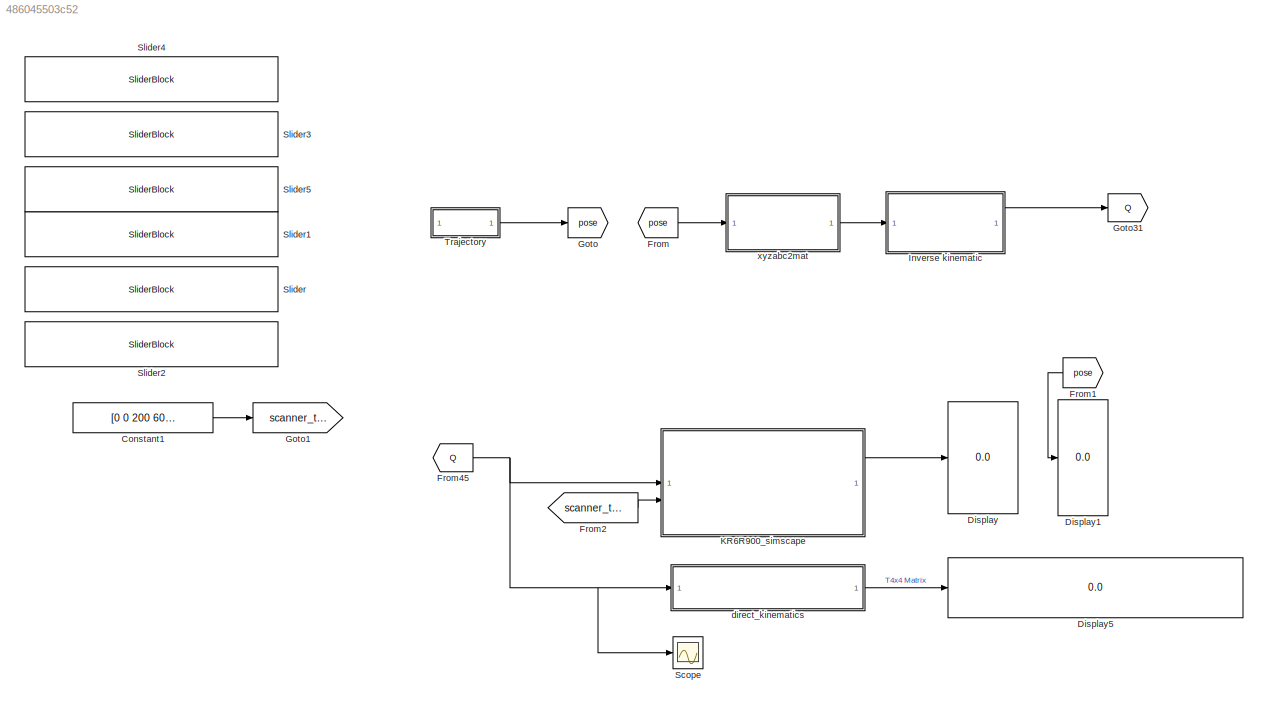
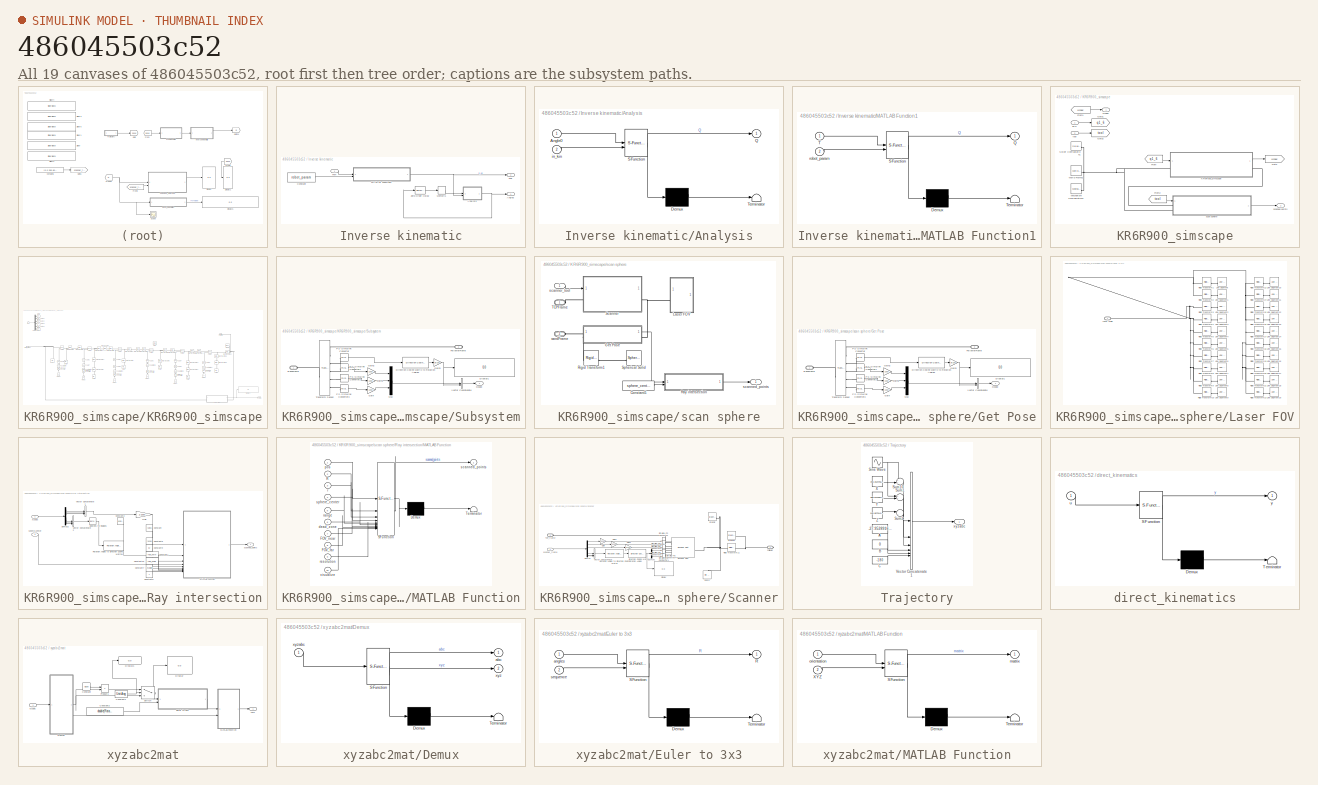
[diagram: thumbnail index - all 19 canvases of the model, root first then tree order]
MODEL slx_486045503c52
KIND model
CONFIG AbsTol = auto
CONFIG EnableMultiTasking = off
CONFIG FixedStep = 0.001
CONFIG MaxStep = auto
CONFIG MinStep = auto
CONFIG RelTol = 1e-3
CONFIG SampleTimeConstraint = Unconstrained
CONFIG SolverName = ode1
CONFIG StartTime = 0.0
CONFIG StopTime = 30
BLOCK [Constant] Constant1
  Value = [0 0 200 60 0 0]
BLOCK [Display] Display
  Decimation = 1
BLOCK [Display] Display1
  Decimation = 1
BLOCK [Display] Display5
  Decimation = 1
BLOCK [From] From
  GotoTag = pose
BLOCK [From] From1
  GotoTag = pose
BLOCK [From] From2
  GotoTag = scanner_tool
BLOCK [From] From45
  GotoTag = Q
BLOCK [Goto] Goto
  GotoTag = pose
BLOCK [Goto] Goto1
  GotoTag = scanner_tool
BLOCK [Goto] Goto31
  GotoTag = Q
BLOCK [SubSystem] Inverse kinematic
BLOCK [SubSystem] Inverse kinematic/Analysis
  ErrorFcn = Stateflow.Translate.translate
  PermitHierarchicalResolution = ExplicitOnly
  SFBlockType = MATLAB Function
  TreatAsAtomicUnit = on
BLOCK [Demux] Inverse kinematic/Analysis/ Demux 
  Outputs = 1
BLOCK [S-Function] Inverse kinematic/Analysis/ SFunction 
  EnableBusSupport = on
  FunctionName = sf_sfun
  PortCounts = [2 2]
  SFcnIsStateOwnerBlock = off
  SFunctionDeploymentMode = off
  Tag = Stateflow S-Function 2
BLOCK [Terminator] Inverse kinematic/Analysis/ Terminator 
BLOCK [Inport] Inverse kinematic/Analysis/Angle0
BLOCK [Outport] Inverse kinematic/Analysis/Q
  VectorParamsAs1DForOutWhenUnconnected = off
BLOCK [Inport] Inverse kinematic/Analysis/in_kin
  Port = 2
BLOCK [Outport] Inverse kinematic/Angles
BLOCK [Constant] Inverse kinematic/Constant
  Value = robot_param
BLOCK [SubSystem] Inverse kinematic/MATLAB Function1
  ErrorFcn = Stateflow.Translate.translate
  PermitHierarchicalResolution = ExplicitOnly
  SFBlockType = MATLAB Function
  TreatAsGroupedWhenPropagatingVariantConditions = off
BLOCK [Demux] Inverse kinematic/MATLAB Function1/ Demux 
  Outputs = 1
BLOCK [S-Function] Inverse kinematic/MATLAB Function1/ SFunction 
  EnableBusSupport = on
  FunctionName = sf_sfun
  PortCounts = [2 2]
  SFcnIsStateOwnerBlock = off
  SFunctionDeploymentMode = off
  Tag = Stateflow S-Function 5
BLOCK [Terminator] Inverse kinematic/MATLAB Function1/ Terminator 
BLOCK [Outport] Inverse kinematic/MATLAB Function1/Q
BLOCK [Inport] Inverse kinematic/MATLAB Function1/T
BLOCK [Inport] Inverse kinematic/MATLAB Function1/robot_param
  Port = 2
BLOCK [Memory] Inverse kinematic/Memory1
  InitialCondition = initial_angles
BLOCK [Inport] Inverse kinematic/T4x4
BLOCK [ZeroOrderHold] Inverse kinematic/Zero-Order Hold2
  SampleTime = -1
BLOCK [Outport] Inverse kinematic/q48
  Port = 2
BLOCK [SubSystem] KR6R900_simscape
BLOCK [From] KR6R900_simscape/From
  GotoTag = q1_6
BLOCK [From] KR6R900_simscape/From1
  GotoTag = xyzabc
BLOCK [From] KR6R900_simscape/From2
  GotoTag = tool
BLOCK [Goto] KR6R900_simscape/Goto
  GotoTag = xyzabc
BLOCK [Goto] KR6R900_simscape/Goto1
  GotoTag = q1_6
BLOCK [Goto] KR6R900_simscape/Goto2
  GotoTag = tool
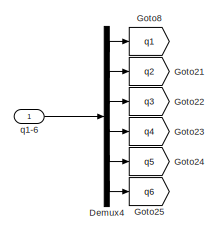
[diagram: KR6R900_simscape/KR6R900_simscape - part 1/4, top left region]
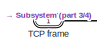
[diagram: KR6R900_simscape/KR6R900_simscape - part 2/4, top right region]
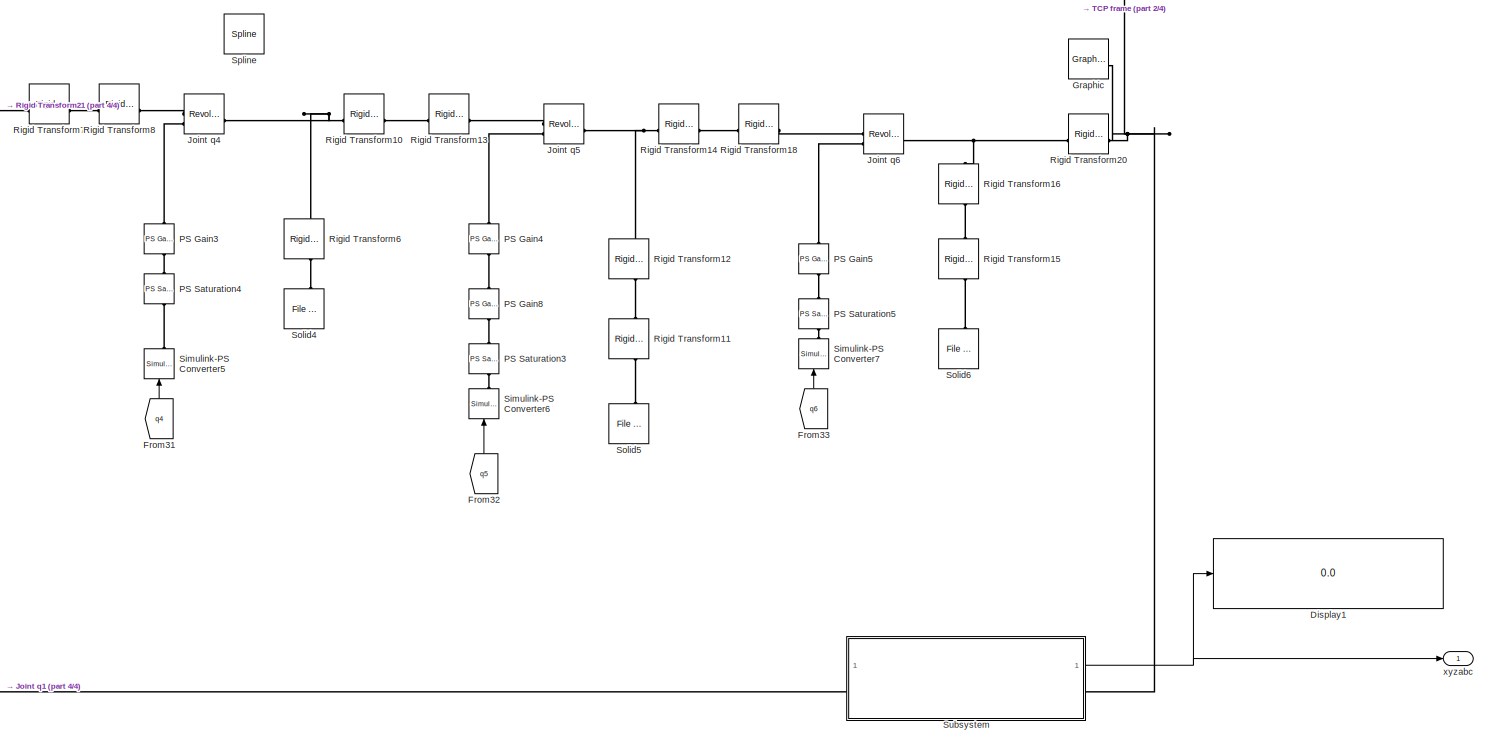
[diagram: KR6R900_simscape/KR6R900_simscape - part 3/4, middle right region]
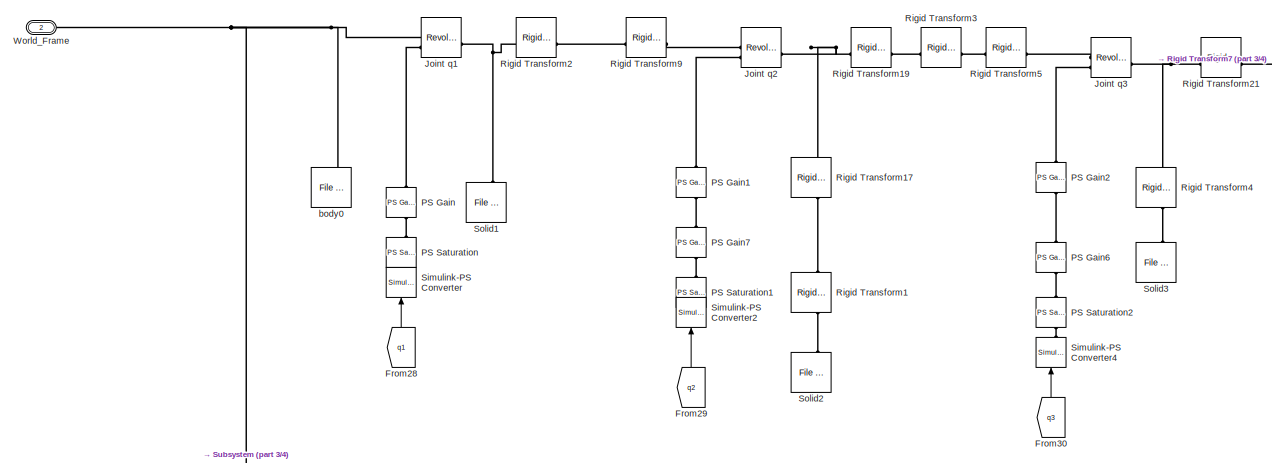
[diagram: KR6R900_simscape/KR6R900_simscape - part 4/4, middle left region]
BLOCK [SubSystem] KR6R900_simscape/KR6R900_simscape
BLOCK [Reference] KR6R900_simscape/KR6R900_simscape/ Joint q1  REF=sm_lib/Joints/Revolute Joint
  SourceBlock = sm_lib/Joints/Revolute Joint
  SourceType = Revolute Joint
BLOCK [Reference] KR6R900_simscape/KR6R900_simscape/ Joint q2  REF=sm_lib/Joints/Revolute Joint
  SourceBlock = sm_lib/Joints/Revolute Joint
  SourceType = Revolute Joint
BLOCK [Reference] KR6R900_simscape/KR6R900_simscape/ Joint q3  REF=sm_lib/Joints/Revolute Joint
  SourceBlock = sm_lib/Joints/Revolute Joint
  SourceType = Revolute Joint
BLOCK [Demux] KR6R900_simscape/KR6R900_simscape/Demux4
  Outputs = 6
BLOCK [Display] KR6R900_simscape/KR6R900_simscape/Display1
  Decimation = 1
BLOCK [From] KR6R900_simscape/KR6R900_simscape/From28
  GotoTag = q1
  NameLocation = right
BLOCK [From] KR6R900_simscape/KR6R900_simscape/From29
  GotoTag = q2
  NameLocation = right
BLOCK [From] KR6R900_simscape/KR6R900_simscape/From30
  GotoTag = q3
  NameLocation = right
BLOCK [From] KR6R900_simscape/KR6R900_simscape/From31
  GotoTag = q4
  NameLocation = right
BLOCK [From] KR6R900_simscape/KR6R900_simscape/From32
  GotoTag = q5
  NameLocation = right
BLOCK [From] KR6R900_simscape/KR6R900_simscape/From33
  GotoTag = q6
  NameLocation = right
BLOCK [Goto] KR6R900_simscape/KR6R900_simscape/Goto21
  GotoTag = q2
BLOCK [Goto] KR6R900_simscape/KR6R900_simscape/Goto22
  GotoTag = q3
BLOCK [Goto] KR6R900_simscape/KR6R900_simscape/Goto23
  GotoTag = q4
BLOCK [Goto] KR6R900_simscape/KR6R900_simscape/Goto24
  GotoTag = q5
BLOCK [Goto] KR6R900_simscape/KR6R900_simscape/Goto25
  GotoTag = q6
BLOCK [Goto] KR6R900_simscape/KR6R900_simscape/Goto8
  GotoTag = q1
BLOCK [Reference] KR6R900_simscape/KR6R900_simscape/Graphic  REF=sm_lib/Body Elements/Graphic
  SourceBlock = sm_lib/Body Elements/Graphic
  SourceType = Graphic
BLOCK [Reference] KR6R900_simscape/KR6R900_simscape/Joint q4  REF=sm_lib/Joints/Revolute Joint
  SourceBlock = sm_lib/Joints/Revolute Joint
  SourceType = Revolute Joint
BLOCK [Reference] KR6R900_simscape/KR6R900_simscape/Joint q5  REF=sm_lib/Joints/Revolute Joint
  SourceBlock = sm_lib/Joints/Revolute Joint
  SourceType = Revolute Joint
BLOCK [Reference] KR6R900_simscape/KR6R900_simscape/Joint q6  REF=sm_lib/Joints/Revolute Joint
  SourceBlock = sm_lib/Joints/Revolute Joint
  SourceType = Revolute Joint
BLOCK [Reference] KR6R900_simscape/KR6R900_simscape/PS Gain  REF=fl_ps_legacy_lib/Legacy Physical
Signals/Functions/PS Gain
  NameLocation = right
  SourceBlock = fl_ps_legacy_lib/Legacy Physical\nSignals/Functions/PS Gain
  SourceType = PS Gain
BLOCK [Reference] KR6R900_simscape/KR6R900_simscape/PS Gain1  REF=fl_ps_legacy_lib/Legacy Physical
Signals/Functions/PS Gain
  NameLocation = right
  SourceBlock = fl_ps_legacy_lib/Legacy Physical\nSignals/Functions/PS Gain
  SourceType = PS Gain
BLOCK [Reference] KR6R900_simscape/KR6R900_simscape/PS Gain2  REF=fl_ps_legacy_lib/Legacy Physical
Signals/Functions/PS Gain
  NameLocation = right
  SourceBlock = fl_ps_legacy_lib/Legacy Physical\nSignals/Functions/PS Gain
  SourceType = PS Gain
BLOCK [Reference] KR6R900_simscape/KR6R900_simscape/PS Gain3  REF=fl_ps_legacy_lib/Legacy Physical
Signals/Functions/PS Gain
  NameLocation = right
  SourceBlock = fl_ps_legacy_lib/Legacy Physical\nSignals/Functions/PS Gain
  SourceType = PS Gain
BLOCK [Reference] KR6R900_simscape/KR6R900_simscape/PS Gain4  REF=fl_ps_legacy_lib/Legacy Physical
Signals/Functions/PS Gain
  NameLocation = right
  SourceBlock = fl_ps_legacy_lib/Legacy Physical\nSignals/Functions/PS Gain
  SourceType = PS Gain
BLOCK [Reference] KR6R900_simscape/KR6R900_simscape/PS Gain5  REF=fl_ps_legacy_lib/Legacy Physical
Signals/Functions/PS Gain
  NameLocation = right
  SourceBlock = fl_ps_legacy_lib/Legacy Physical\nSignals/Functions/PS Gain
  SourceType = PS Gain
BLOCK [Reference] KR6R900_simscape/KR6R900_simscape/PS Gain6  REF=fl_ps_legacy_lib/Legacy Physical
Signals/Functions/PS Gain
  NameLocation = right
  SourceBlock = fl_ps_legacy_lib/Legacy Physical\nSignals/Functions/PS Gain
  SourceType = PS Gain
BLOCK [Reference] KR6R900_simscape/KR6R900_simscape/PS Gain7  REF=fl_ps_legacy_lib/Legacy Physical
Signals/Functions/PS Gain
  NameLocation = right
  SourceBlock = fl_ps_legacy_lib/Legacy Physical\nSignals/Functions/PS Gain
  SourceType = PS Gain
BLOCK [Reference] KR6R900_simscape/KR6R900_simscape/PS Gain8  REF=fl_ps_legacy_lib/Legacy Physical
Signals/Functions/PS Gain
  NameLocation = right
  SourceBlock = fl_ps_legacy_lib/Legacy Physical\nSignals/Functions/PS Gain
  SourceType = PS Gain
BLOCK [Reference] KR6R900_simscape/KR6R900_simscape/PS Saturation  REF=fl_ps_legacy_lib/Legacy Physical
Signals/Nonlinear Operators/PS Saturation
  NameLocation = right
  SourceBlock = fl_ps_legacy_lib/Legacy Physical\nSignals/Nonlinear Operators/PS Saturation
  SourceType = PS Saturation
BLOCK [Reference] KR6R900_simscape/KR6R900_simscape/PS Saturation1  REF=fl_ps_legacy_lib/Legacy Physical
Signals/Nonlinear Operators/PS Saturation
  NameLocation = right
  SourceBlock = fl_ps_legacy_lib/Legacy Physical\nSignals/Nonlinear Operators/PS Saturation
  SourceType = PS Saturation
BLOCK [Reference] KR6R900_simscape/KR6R900_simscape/PS Saturation2  REF=fl_ps_legacy_lib/Legacy Physical
Signals/Nonlinear Operators/PS Saturation
  NameLocation = right
  SourceBlock = fl_ps_legacy_lib/Legacy Physical\nSignals/Nonlinear Operators/PS Saturation
  SourceType = PS Saturation
BLOCK [Reference] KR6R900_simscape/KR6R900_simscape/PS Saturation3  REF=fl_ps_legacy_lib/Legacy Physical
Signals/Nonlinear Operators/PS Saturation
  NameLocation = right
  SourceBlock = fl_ps_legacy_lib/Legacy Physical\nSignals/Nonlinear Operators/PS Saturation
  SourceType = PS Saturation
BLOCK [Reference] KR6R900_simscape/KR6R900_simscape/PS Saturation4  REF=fl_ps_legacy_lib/Legacy Physical
Signals/Nonlinear Operators/PS Saturation
  NameLocation = right
  SourceBlock = fl_ps_legacy_lib/Legacy Physical\nSignals/Nonlinear Operators/PS Saturation
  SourceType = PS Saturation
BLOCK [Reference] KR6R900_simscape/KR6R900_simscape/PS Saturation5  REF=fl_ps_legacy_lib/Legacy Physical
Signals/Nonlinear Operators/PS Saturation
  NameLocation = right
  SourceBlock = fl_ps_legacy_lib/Legacy Physical\nSignals/Nonlinear Operators/PS Saturation
  SourceType = PS Saturation
BLOCK [Reference] KR6R900_simscape/KR6R900_simscape/Rigid Transform1  REF=sm_lib/Frames and
Transforms/Rigid
Transform
  NameLocation = right
  SourceBlock = sm_lib/Frames and\nTransforms/Rigid\nTransform
  SourceType = Rigid\nTransform
BLOCK [Reference] KR6R900_simscape/KR6R900_simscape/Rigid Transform10  REF=sm_lib/Frames and
Transforms/Rigid
Transform
  SourceBlock = sm_lib/Frames and\nTransforms/Rigid\nTransform
  SourceType = Rigid\nTransform
BLOCK [Reference] KR6R900_simscape/KR6R900_simscape/Rigid Transform11  REF=sm_lib/Frames and
Transforms/Rigid
Transform
  NameLocation = right
  SourceBlock = sm_lib/Frames and\nTransforms/Rigid\nTransform
  SourceType = Rigid\nTransform
BLOCK [Reference] KR6R900_simscape/KR6R900_simscape/Rigid Transform12  REF=sm_lib/Frames and
Transforms/Rigid
Transform
  NameLocation = right
  SourceBlock = sm_lib/Frames and\nTransforms/Rigid\nTransform
  SourceType = Rigid\nTransform
BLOCK [Reference] KR6R900_simscape/KR6R900_simscape/Rigid Transform13  REF=sm_lib/Frames and
Transforms/Rigid
Transform
  SourceBlock = sm_lib/Frames and\nTransforms/Rigid\nTransform
  SourceType = Rigid\nTransform
BLOCK [Reference] KR6R900_simscape/KR6R900_simscape/Rigid Transform14  REF=sm_lib/Frames and
Transforms/Rigid
Transform
  SourceBlock = sm_lib/Frames and\nTransforms/Rigid\nTransform
  SourceType = Rigid\nTransform
BLOCK [Reference] KR6R900_simscape/KR6R900_simscape/Rigid Transform15  REF=sm_lib/Frames and
Transforms/Rigid
Transform
  NameLocation = right
  SourceBlock = sm_lib/Frames and\nTransforms/Rigid\nTransform
  SourceType = Rigid\nTransform
BLOCK [Reference] KR6R900_simscape/KR6R900_simscape/Rigid Transform16  REF=sm_lib/Frames and
Transforms/Rigid
Transform
  NameLocation = right
  SourceBlock = sm_lib/Frames and\nTransforms/Rigid\nTransform
  SourceType = Rigid\nTransform
BLOCK [Reference] KR6R900_simscape/KR6R900_simscape/Rigid Transform17  REF=sm_lib/Frames and
Transforms/Rigid
Transform
  NameLocation = right
  SourceBlock = sm_lib/Frames and\nTransforms/Rigid\nTransform
  SourceType = Rigid\nTransform
BLOCK [Reference] KR6R900_simscape/KR6R900_simscape/Rigid Transform18  REF=sm_lib/Frames and
Transforms/Rigid
Transform
  SourceBlock = sm_lib/Frames and\nTransforms/Rigid\nTransform
  SourceType = Rigid\nTransform
BLOCK [Reference] KR6R900_simscape/KR6R900_simscape/Rigid Transform19  REF=sm_lib/Frames and
Transforms/Rigid
Transform
  SourceBlock = sm_lib/Frames and\nTransforms/Rigid\nTransform
  SourceType = Rigid\nTransform
BLOCK [Reference] KR6R900_simscape/KR6R900_simscape/Rigid Transform2  REF=sm_lib/Frames and
Transforms/Rigid
Transform
  SourceBlock = sm_lib/Frames and\nTransforms/Rigid\nTransform
  SourceType = Rigid\nTransform
BLOCK [Reference] KR6R900_simscape/KR6R900_simscape/Rigid Transform20  REF=sm_lib/Frames and
Transforms/Rigid
Transform
  SourceBlock = sm_lib/Frames and\nTransforms/Rigid\nTransform
  SourceType = Rigid\nTransform
BLOCK [Reference] KR6R900_simscape/KR6R900_simscape/Rigid Transform21  REF=sm_lib/Frames and
Transforms/Rigid
Transform
  SourceBlock = sm_lib/Frames and\nTransforms/Rigid\nTransform
  SourceType = Rigid\nTransform
BLOCK [Reference] KR6R900_simscape/KR6R900_simscape/Rigid Transform3  REF=sm_lib/Frames and
Transforms/Rigid
Transform
  SourceBlock = sm_lib/Frames and\nTransforms/Rigid\nTransform
  SourceType = Rigid\nTransform
BLOCK [Reference] KR6R900_simscape/KR6R900_simscape/Rigid Transform4  REF=sm_lib/Frames and
Transforms/Rigid
Transform
  NameLocation = right
  SourceBlock = sm_lib/Frames and\nTransforms/Rigid\nTransform
  SourceType = Rigid\nTransform
BLOCK [Reference] KR6R900_simscape/KR6R900_simscape/Rigid Transform5  REF=sm_lib/Frames and
Transforms/Rigid
Transform
  SourceBlock = sm_lib/Frames and\nTransforms/Rigid\nTransform
  SourceType = Rigid\nTransform
BLOCK [Reference] KR6R900_simscape/KR6R900_simscape/Rigid Transform6  REF=sm_lib/Frames and
Transforms/Rigid
Transform
  NameLocation = right
  SourceBlock = sm_lib/Frames and\nTransforms/Rigid\nTransform
  SourceType = Rigid\nTransform
BLOCK [Reference] KR6R900_simscape/KR6R900_simscape/Rigid Transform7  REF=sm_lib/Frames and
Transforms/Rigid
Transform
  SourceBlock = sm_lib/Frames and\nTransforms/Rigid\nTransform
  SourceType = Rigid\nTransform
BLOCK [Reference] KR6R900_simscape/KR6R900_simscape/Rigid Transform8  REF=sm_lib/Frames and
Transforms/Rigid
Transform
  SourceBlock = sm_lib/Frames and\nTransforms/Rigid\nTransform
  SourceType = Rigid\nTransform
BLOCK [Reference] KR6R900_simscape/KR6R900_simscape/Rigid Transform9  REF=sm_lib/Frames and
Transforms/Rigid
Transform
  SourceBlock = sm_lib/Frames and\nTransforms/Rigid\nTransform
  SourceType = Rigid\nTransform
BLOCK [Reference] KR6R900_simscape/KR6R900_simscape/Simulink-PS Converter  REF=nesl_utility/Simulink-PS
Converter
  NameLocation = right
  SourceBlock = nesl_utility/Simulink-PS\nConverter
  SourceType = Simulink-PS\nConverter
BLOCK [Reference] KR6R900_simscape/KR6R900_simscape/Simulink-PS Converter2  REF=nesl_utility/Simulink-PS
Converter
  NameLocation = right
  SourceBlock = nesl_utility/Simulink-PS\nConverter
  SourceType = Simulink-PS\nConverter
BLOCK [Reference] KR6R900_simscape/KR6R900_simscape/Simulink-PS Converter4  REF=nesl_utility/Simulink-PS
Converter
  NameLocation = right
  SourceBlock = nesl_utility/Simulink-PS\nConverter
  SourceType = Simulink-PS\nConverter
BLOCK [Reference] KR6R900_simscape/KR6R900_simscape/Simulink-PS Converter5  REF=nesl_utility/Simulink-PS
Converter
  NameLocation = right
  SourceBlock = nesl_utility/Simulink-PS\nConverter
  SourceType = Simulink-PS\nConverter
BLOCK [Reference] KR6R900_simscape/KR6R900_simscape/Simulink-PS Converter6  REF=nesl_utility/Simulink-PS
Converter
  NameLocation = right
  SourceBlock = nesl_utility/Simulink-PS\nConverter
  SourceType = Simulink-PS\nConverter
BLOCK [Reference] KR6R900_simscape/KR6R900_simscape/Simulink-PS Converter7  REF=nesl_utility/Simulink-PS
Converter
  NameLocation = right
  SourceBlock = nesl_utility/Simulink-PS\nConverter
  SourceType = Simulink-PS\nConverter
BLOCK [Reference] KR6R900_simscape/KR6R900_simscape/Solid1  REF=sm_lib/Body Elements/File Solid
  NameLocation = right
  SourceBlock = sm_lib/Body Elements/File Solid
  SourceType = File Solid
BLOCK [Reference] KR6R900_simscape/KR6R900_simscape/Solid2  REF=sm_lib/Body Elements/File Solid
  NameLocation = right
  SourceBlock = sm_lib/Body Elements/File Solid
  SourceType = File Solid
BLOCK [Reference] KR6R900_simscape/KR6R900_simscape/Solid3  REF=sm_lib/Body Elements/File Solid
  NameLocation = right
  SourceBlock = sm_lib/Body Elements/File Solid
  SourceType = File Solid
BLOCK [Reference] KR6R900_simscape/KR6R900_simscape/Solid4  REF=sm_lib/Body Elements/File Solid
  NameLocation = right
  SourceBlock = sm_lib/Body Elements/File Solid
  SourceType = File Solid
BLOCK [Reference] KR6R900_simscape/KR6R900_simscape/Solid5  REF=sm_lib/Body Elements/File Solid
  NameLocation = right
  SourceBlock = sm_lib/Body Elements/File Solid
  SourceType = File Solid
BLOCK [Reference] KR6R900_simscape/KR6R900_simscape/Solid6  REF=sm_lib/Body Elements/File Solid
  NameLocation = right
  SourceBlock = sm_lib/Body Elements/File Solid
  SourceType = File Solid
BLOCK [Reference] KR6R900_simscape/KR6R900_simscape/Spline  REF=sm_lib/Curves and Surfaces/Spline
  Commented = on
  SourceBlock = sm_lib/Curves and Surfaces/Spline
  SourceType = Spline
BLOCK [SubSystem] KR6R900_simscape/KR6R900_simscape/Subsystem
BLOCK [PMIOPort] KR6R900_simscape/KR6R900_simscape/Subsystem/BaseFrame
  Side = Left
BLOCK [Reference] KR6R900_simscape/KR6R900_simscape/Subsystem/Direction Cosine Matrix to Rotation Angles  REF=sharedtransform/Direction Cosine Matrix
to Rotation Angles
  AttributesFormatString = Rotation Order: %<rotationOrder>
  LibrarySourceBlock = aerolibtransform2/Direction Cosine Matrix\nto Rotation Angles
  SourceBlock = sharedtransform/Direction Cosine Matrix\nto Rotation Angles
  SourceType = DCM2Ang
BLOCK [Display] KR6R900_simscape/KR6R900_simscape/Subsystem/Display1
  Decimation = 1
BLOCK [PMIOPort] KR6R900_simscape/KR6R900_simscape/Subsystem/FollowerFrame
  Port = 2
  Side = Right
BLOCK [Gain] KR6R900_simscape/KR6R900_simscape/Subsystem/Gain
  Gain = 1000
BLOCK [Gain] KR6R900_simscape/KR6R900_simscape/Subsystem/Gain1
  Gain = 1000
BLOCK [Gain] KR6R900_simscape/KR6R900_simscape/Subsystem/Gain2
  Gain = 1000
BLOCK [Gain] KR6R900_simscape/KR6R900_simscape/Subsystem/Gain3
  Gain = pi/180
BLOCK [Mux] KR6R900_simscape/KR6R900_simscape/Subsystem/Mux
  DisplayOption = bar
  Inputs = 3
BLOCK [Reference] KR6R900_simscape/KR6R900_simscape/Subsystem/PS-Simulink Converter  REF=nesl_utility/PS-Simulink
Converter
  SourceBlock = nesl_utility/PS-Simulink\nConverter
  SourceType = PS-Simulink\nConverter
BLOCK [Reference] KR6R900_simscape/KR6R900_simscape/Subsystem/PS-Simulink Converter1  REF=nesl_utility/PS-Simulink
Converter
  SourceBlock = nesl_utility/PS-Simulink\nConverter
  SourceType = PS-Simulink\nConverter
BLOCK [Reference] KR6R900_simscape/KR6R900_simscape/Subsystem/PS-Simulink Converter2  REF=nesl_utility/PS-Simulink
Converter
  SourceBlock = nesl_utility/PS-Simulink\nConverter
  SourceType = PS-Simulink\nConverter
BLOCK [Reference] KR6R900_simscape/KR6R900_simscape/Subsystem/PS-Simulink Converter3  REF=nesl_utility/PS-Simulink
Converter
  SourceBlock = nesl_utility/PS-Simulink\nConverter
  SourceType = PS-Simulink\nConverter
BLOCK [Reference] KR6R900_simscape/KR6R900_simscape/Subsystem/Transform Sensor  REF=sm_lib/Frames and
Transforms/Transform
Sensor
  SourceBlock = sm_lib/Frames and\nTransforms/Transform\nSensor
  SourceType = Transform\nSensor
BLOCK [Concatenate] KR6R900_simscape/KR6R900_simscape/Subsystem/Vector Concatenate
BLOCK [Outport] KR6R900_simscape/KR6R900_simscape/Subsystem/xyzabc
BLOCK [PMIOPort] KR6R900_simscape/KR6R900_simscape/TCP frame
  Side = Right
BLOCK [PMIOPort] KR6R900_simscape/KR6R900_simscape/World_Frame
  Port = 2
  Side = Left
BLOCK [Reference] KR6R900_simscape/KR6R900_simscape/body0  REF=sm_lib/Body Elements/File Solid
  NameLocation = right
  SourceBlock = sm_lib/Body Elements/File Solid
  SourceType = File Solid
BLOCK [Inport] KR6R900_simscape/KR6R900_simscape/q1-6
BLOCK [Outport] KR6R900_simscape/KR6R900_simscape/xyzabc
BLOCK [Reference] KR6R900_simscape/Mechanism Configuration1  REF=sm_lib/Utilities/Mechanism
Configuration
  SourceBlock = sm_lib/Utilities/Mechanism\nConfiguration
  SourceType = Mechanism\nConfiguration
BLOCK [Reference] KR6R900_simscape/Solver Configuration1  REF=nesl_utility/Solver
Configuration
  SourceBlock = nesl_utility/Solver\nConfiguration
  SourceType = Solver\nConfiguration
BLOCK [Reference] KR6R900_simscape/World Frame1  REF=sm_lib/Frames and
Transforms/World Frame
  SourceBlock = sm_lib/Frames and\nTransforms/World Frame
  SourceType = World Frame
BLOCK [Inport] KR6R900_simscape/q1-6
BLOCK [SubSystem] KR6R900_simscape/scan sphere
BLOCK [Constant] KR6R900_simscape/scan sphere/Constant5
  Value = sphere_center
BLOCK [SubSystem] KR6R900_simscape/scan sphere/Get Pose
  PortSchema = {"entries":[{"content":{"sides":[{"content":{"connectorIds":["LConn1"]},"type":"ConnectorPlacement.EquallySpacedRectSide","uuid":"b8e811d9-c8f4-4b07-8e9d-de46c72073d0"},{"content":{"connectorIds":["RConn1","Out1"],"side":"RIGHT"},"type":"ConnectorPlacement.EquallySpacedRectSide","uuid":"7e6b8387-9b50-4b02-8ece-225001365857"},{"content":{"side":"TOP"},"type":"ConnectorPlacement.EquallySpacedRectSid...<+234ch>
BLOCK [PMIOPort] KR6R900_simscape/scan sphere/Get Pose/BaseFrame
  Side = Left
BLOCK [Reference] KR6R900_simscape/scan sphere/Get Pose/Direction Cosine Matrix to Rotation Angles  REF=sharedtransform/Direction Cosine Matrix
to Rotation Angles
  AttributesFormatString = Rotation Order: %<rotationOrder>
  LibrarySourceBlock = aerolibtransform2/Direction Cosine Matrix\nto Rotation Angles
  SourceBlock = sharedtransform/Direction Cosine Matrix\nto Rotation Angles
  SourceType = DCM2Ang
BLOCK [Display] KR6R900_simscape/scan sphere/Get Pose/Display1
  Decimation = 1
BLOCK [PMIOPort] KR6R900_simscape/scan sphere/Get Pose/FollowerFrame
  Port = 2
  Side = Right
BLOCK [Gain] KR6R900_simscape/scan sphere/Get Pose/Gain
  Gain = 1000
BLOCK [Gain] KR6R900_simscape/scan sphere/Get Pose/Gain1
  Gain = 1000
BLOCK [Gain] KR6R900_simscape/scan sphere/Get Pose/Gain2
  Gain = 1000
BLOCK [Gain] KR6R900_simscape/scan sphere/Get Pose/Gain3
  Gain = pi/180
BLOCK [Mux] KR6R900_simscape/scan sphere/Get Pose/Mux
  DisplayOption = bar
  Inputs = 3
BLOCK [Reference] KR6R900_simscape/scan sphere/Get Pose/PS-Simulink Converter  REF=nesl_utility/PS-Simulink
Converter
  SourceBlock = nesl_utility/PS-Simulink\nConverter
  SourceType = PS-Simulink\nConverter
BLOCK [Reference] KR6R900_simscape/scan sphere/Get Pose/PS-Simulink Converter1  REF=nesl_utility/PS-Simulink
Converter
  SourceBlock = nesl_utility/PS-Simulink\nConverter
  SourceType = PS-Simulink\nConverter
BLOCK [Reference] KR6R900_simscape/scan sphere/Get Pose/PS-Simulink Converter2  REF=nesl_utility/PS-Simulink
Converter
  SourceBlock = nesl_utility/PS-Simulink\nConverter
  SourceType = PS-Simulink\nConverter
BLOCK [Reference] KR6R900_simscape/scan sphere/Get Pose/PS-Simulink Converter3  REF=nesl_utility/PS-Simulink
Converter
  SourceBlock = nesl_utility/PS-Simulink\nConverter
  SourceType = PS-Simulink\nConverter
BLOCK [Reference] KR6R900_simscape/scan sphere/Get Pose/Transform Sensor  REF=sm_lib/Frames and
Transforms/Transform
Sensor
  SourceBlock = sm_lib/Frames and\nTransforms/Transform\nSensor
  SourceType = Transform\nSensor
BLOCK [Concatenate] KR6R900_simscape/scan sphere/Get Pose/Vector Concatenate
BLOCK [Outport] KR6R900_simscape/scan sphere/Get Pose/xyzabc
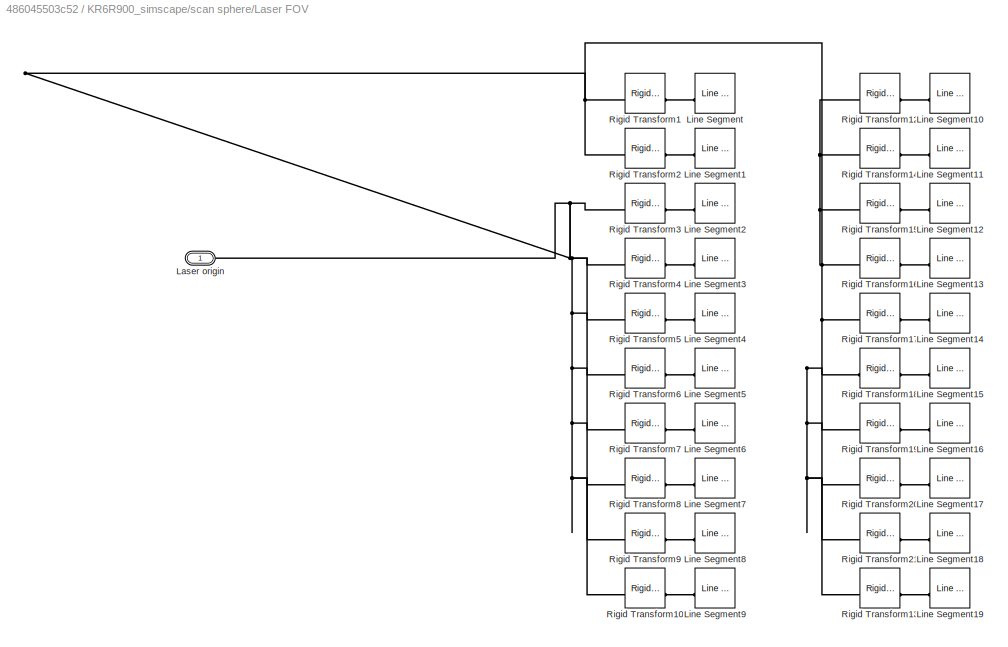
BLOCK [SubSystem] KR6R900_simscape/scan sphere/Laser FOV
BLOCK [PMIOPort] KR6R900_simscape/scan sphere/Laser FOV/Laser origin
  Side = Left
BLOCK [Reference] KR6R900_simscape/scan sphere/Laser FOV/Line Segment  REF=sm_lib/Curves and Surfaces/Line Segment
  SourceBlock = sm_lib/Curves and Surfaces/Line Segment
  SourceType = Line Segment
BLOCK [Reference] KR6R900_simscape/scan sphere/Laser FOV/Line Segment1  REF=sm_lib/Curves and Surfaces/Line Segment
  SourceBlock = sm_lib/Curves and Surfaces/Line Segment
  SourceType = Line Segment
BLOCK [Reference] KR6R900_simscape/scan sphere/Laser FOV/Line Segment10  REF=sm_lib/Curves and Surfaces/Line Segment
  SourceBlock = sm_lib/Curves and Surfaces/Line Segment
  SourceType = Line Segment
BLOCK [Reference] KR6R900_simscape/scan sphere/Laser FOV/Line Segment11  REF=sm_lib/Curves and Surfaces/Line Segment
  SourceBlock = sm_lib/Curves and Surfaces/Line Segment
  SourceType = Line Segment
BLOCK [Reference] KR6R900_simscape/scan sphere/Laser FOV/Line Segment12  REF=sm_lib/Curves and Surfaces/Line Segment
  SourceBlock = sm_lib/Curves and Surfaces/Line Segment
  SourceType = Line Segment
BLOCK [Reference] KR6R900_simscape/scan sphere/Laser FOV/Line Segment13  REF=sm_lib/Curves and Surfaces/Line Segment
  SourceBlock = sm_lib/Curves and Surfaces/Line Segment
  SourceType = Line Segment
BLOCK [Reference] KR6R900_simscape/scan sphere/Laser FOV/Line Segment14  REF=sm_lib/Curves and Surfaces/Line Segment
  SourceBlock = sm_lib/Curves and Surfaces/Line Segment
  SourceType = Line Segment
BLOCK [Reference] KR6R900_simscape/scan sphere/Laser FOV/Line Segment15  REF=sm_lib/Curves and Surfaces/Line Segment
  SourceBlock = sm_lib/Curves and Surfaces/Line Segment
  SourceType = Line Segment
BLOCK [Reference] KR6R900_simscape/scan sphere/Laser FOV/Line Segment16  REF=sm_lib/Curves and Surfaces/Line Segment
  SourceBlock = sm_lib/Curves and Surfaces/Line Segment
  SourceType = Line Segment
BLOCK [Reference] KR6R900_simscape/scan sphere/Laser FOV/Line Segment17  REF=sm_lib/Curves and Surfaces/Line Segment
  SourceBlock = sm_lib/Curves and Surfaces/Line Segment
  SourceType = Line Segment
BLOCK [Reference] KR6R900_simscape/scan sphere/Laser FOV/Line Segment18  REF=sm_lib/Curves and Surfaces/Line Segment
  SourceBlock = sm_lib/Curves and Surfaces/Line Segment
  SourceType = Line Segment
BLOCK [Reference] KR6R900_simscape/scan sphere/Laser FOV/Line Segment19  REF=sm_lib/Curves and Surfaces/Line Segment
  SourceBlock = sm_lib/Curves and Surfaces/Line Segment
  SourceType = Line Segment
BLOCK [Reference] KR6R900_simscape/scan sphere/Laser FOV/Line Segment2  REF=sm_lib/Curves and Surfaces/Line Segment
  SourceBlock = sm_lib/Curves and Surfaces/Line Segment
  SourceType = Line Segment
BLOCK [Reference] KR6R900_simscape/scan sphere/Laser FOV/Line Segment3  REF=sm_lib/Curves and Surfaces/Line Segment
  SourceBlock = sm_lib/Curves and Surfaces/Line Segment
  SourceType = Line Segment
BLOCK [Reference] KR6R900_simscape/scan sphere/Laser FOV/Line Segment4  REF=sm_lib/Curves and Surfaces/Line Segment
  SourceBlock = sm_lib/Curves and Surfaces/Line Segment
  SourceType = Line Segment
BLOCK [Reference] KR6R900_simscape/scan sphere/Laser FOV/Line Segment5  REF=sm_lib/Curves and Surfaces/Line Segment
  SourceBlock = sm_lib/Curves and Surfaces/Line Segment
  SourceType = Line Segment
BLOCK [Reference] KR6R900_simscape/scan sphere/Laser FOV/Line Segment6  REF=sm_lib/Curves and Surfaces/Line Segment
  SourceBlock = sm_lib/Curves and Surfaces/Line Segment
  SourceType = Line Segment
BLOCK [Reference] KR6R900_simscape/scan sphere/Laser FOV/Line Segment7  REF=sm_lib/Curves and Surfaces/Line Segment
  SourceBlock = sm_lib/Curves and Surfaces/Line Segment
  SourceType = Line Segment
BLOCK [Reference] KR6R900_simscape/scan sphere/Laser FOV/Line Segment8  REF=sm_lib/Curves and Surfaces/Line Segment
  SourceBlock = sm_lib/Curves and Surfaces/Line Segment
  SourceType = Line Segment
BLOCK [Reference] KR6R900_simscape/scan sphere/Laser FOV/Line Segment9  REF=sm_lib/Curves and Surfaces/Line Segment
  SourceBlock = sm_lib/Curves and Surfaces/Line Segment
  SourceType = Line Segment
BLOCK [Reference] KR6R900_simscape/scan sphere/Laser FOV/Rigid Transform1  REF=sm_lib/Frames and
Transforms/Rigid
Transform
  SourceBlock = sm_lib/Frames and\nTransforms/Rigid\nTransform
  SourceType = Rigid\nTransform
BLOCK [Reference] KR6R900_simscape/scan sphere/Laser FOV/Rigid Transform10  REF=sm_lib/Frames and
Transforms/Rigid
Transform
  SourceBlock = sm_lib/Frames and\nTransforms/Rigid\nTransform
  SourceType = Rigid\nTransform
BLOCK [Reference] KR6R900_simscape/scan sphere/Laser FOV/Rigid Transform12  REF=sm_lib/Frames and
Transforms/Rigid
Transform
  SourceBlock = sm_lib/Frames and\nTransforms/Rigid\nTransform
  SourceType = Rigid\nTransform
BLOCK [Reference] KR6R900_simscape/scan sphere/Laser FOV/Rigid Transform13  REF=sm_lib/Frames and
Transforms/Rigid
Transform
  SourceBlock = sm_lib/Frames and\nTransforms/Rigid\nTransform
  SourceType = Rigid\nTransform
BLOCK [Reference] KR6R900_simscape/scan sphere/Laser FOV/Rigid Transform14  REF=sm_lib/Frames and
Transforms/Rigid
Transform
  SourceBlock = sm_lib/Frames and\nTransforms/Rigid\nTransform
  SourceType = Rigid\nTransform
BLOCK [Reference] KR6R900_simscape/scan sphere/Laser FOV/Rigid Transform15  REF=sm_lib/Frames and
Transforms/Rigid
Transform
  SourceBlock = sm_lib/Frames and\nTransforms/Rigid\nTransform
  SourceType = Rigid\nTransform
BLOCK [Reference] KR6R900_simscape/scan sphere/Laser FOV/Rigid Transform16  REF=sm_lib/Frames and
Transforms/Rigid
Transform
  SourceBlock = sm_lib/Frames and\nTransforms/Rigid\nTransform
  SourceType = Rigid\nTransform
BLOCK [Reference] KR6R900_simscape/scan sphere/Laser FOV/Rigid Transform17  REF=sm_lib/Frames and
Transforms/Rigid
Transform
  SourceBlock = sm_lib/Frames and\nTransforms/Rigid\nTransform
  SourceType = Rigid\nTransform
BLOCK [Reference] KR6R900_simscape/scan sphere/Laser FOV/Rigid Transform18  REF=sm_lib/Frames and
Transforms/Rigid
Transform
  SourceBlock = sm_lib/Frames and\nTransforms/Rigid\nTransform
  SourceType = Rigid\nTransform
BLOCK [Reference] KR6R900_simscape/scan sphere/Laser FOV/Rigid Transform19  REF=sm_lib/Frames and
Transforms/Rigid
Transform
  SourceBlock = sm_lib/Frames and\nTransforms/Rigid\nTransform
  SourceType = Rigid\nTransform
BLOCK [Reference] KR6R900_simscape/scan sphere/Laser FOV/Rigid Transform2  REF=sm_lib/Frames and
Transforms/Rigid
Transform
  SourceBlock = sm_lib/Frames and\nTransforms/Rigid\nTransform
  SourceType = Rigid\nTransform
BLOCK [Reference] KR6R900_simscape/scan sphere/Laser FOV/Rigid Transform20  REF=sm_lib/Frames and
Transforms/Rigid
Transform
  SourceBlock = sm_lib/Frames and\nTransforms/Rigid\nTransform
  SourceType = Rigid\nTransform
BLOCK [Reference] KR6R900_simscape/scan sphere/Laser FOV/Rigid Transform21  REF=sm_lib/Frames and
Transforms/Rigid
Transform
  SourceBlock = sm_lib/Frames and\nTransforms/Rigid\nTransform
  SourceType = Rigid\nTransform
BLOCK [Reference] KR6R900_simscape/scan sphere/Laser FOV/Rigid Transform3  REF=sm_lib/Frames and
Transforms/Rigid
Transform
  SourceBlock = sm_lib/Frames and\nTransforms/Rigid\nTransform
  SourceType = Rigid\nTransform
BLOCK [Reference] KR6R900_simscape/scan sphere/Laser FOV/Rigid Transform4  REF=sm_lib/Frames and
Transforms/Rigid
Transform
  SourceBlock = sm_lib/Frames and\nTransforms/Rigid\nTransform
  SourceType = Rigid\nTransform
BLOCK [Reference] KR6R900_simscape/scan sphere/Laser FOV/Rigid Transform5  REF=sm_lib/Frames and
Transforms/Rigid
Transform
  SourceBlock = sm_lib/Frames and\nTransforms/Rigid\nTransform
  SourceType = Rigid\nTransform
BLOCK [Reference] KR6R900_simscape/scan sphere/Laser FOV/Rigid Transform6  REF=sm_lib/Frames and
Transforms/Rigid
Transform
  SourceBlock = sm_lib/Frames and\nTransforms/Rigid\nTransform
  SourceType = Rigid\nTransform
BLOCK [Reference] KR6R900_simscape/scan sphere/Laser FOV/Rigid Transform7  REF=sm_lib/Frames and
Transforms/Rigid
Transform
  SourceBlock = sm_lib/Frames and\nTransforms/Rigid\nTransform
  SourceType = Rigid\nTransform
BLOCK [Reference] KR6R900_simscape/scan sphere/Laser FOV/Rigid Transform8  REF=sm_lib/Frames and
Transforms/Rigid
Transform
  SourceBlock = sm_lib/Frames and\nTransforms/Rigid\nTransform
  SourceType = Rigid\nTransform
BLOCK [Reference] KR6R900_simscape/scan sphere/Laser FOV/Rigid Transform9  REF=sm_lib/Frames and
Transforms/Rigid
Transform
  SourceBlock = sm_lib/Frames and\nTransforms/Rigid\nTransform
  SourceType = Rigid\nTransform
BLOCK [SubSystem] KR6R900_simscape/scan sphere/Ray intersection
  SystemSampleTime = 1/freq
  TreatAsAtomicUnit = on
BLOCK [Constant] KR6R900_simscape/scan sphere/Ray intersection/Constant
  Value = radius
BLOCK [Constant] KR6R900_simscape/scan sphere/Ray intersection/Constant1
  Value = fov_min
BLOCK [Constant] KR6R900_simscape/scan sphere/Ray intersection/Constant10
  Value = fov_max
BLOCK [Constant] KR6R900_simscape/scan sphere/Ray intersection/Constant2
  Value = [ 1 0 0; 0 1 0; 0 0 -1]
BLOCK [Constant] KR6R900_simscape/scan sphere/Ray intersection/Constant6
  Value = range
BLOCK [Constant] KR6R900_simscape/scan sphere/Ray intersection/Constant7
  Value = resolution
BLOCK [Constant] KR6R900_simscape/scan sphere/Ray intersection/Constant8
BLOCK [Constant] KR6R900_simscape/scan sphere/Ray intersection/Constant9
  Value = dz
BLOCK [Reference] KR6R900_simscape/scan sphere/Ray intersection/Degrees to Radians  REF=simulink_extras/Transformations/Degrees to
Radians
  SourceBlock = simulink_extras/Transformations/Degrees to\nRadians
  SourceType = DegreesToRadians
BLOCK [Demux] KR6R900_simscape/scan sphere/Ray intersection/Demux2
  Outputs = 6
BLOCK [Gain] KR6R900_simscape/scan sphere/Ray intersection/Gain
  Gain = 1/1000
BLOCK [SubSystem] KR6R900_simscape/scan sphere/Ray intersection/MATLAB Function
  ErrorFcn = Stateflow.Translate.translate
  PermitHierarchicalResolution = ExplicitOnly
  SFBlockType = MATLAB Function
  TreatAsAtomicUnit = on
BLOCK [Demux] KR6R900_simscape/scan sphere/Ray intersection/MATLAB Function/ Demux 
  Outputs = 1
BLOCK [S-Function] KR6R900_simscape/scan sphere/Ray intersection/MATLAB Function/ SFunction 
  EnableBusSupport = on
  FunctionName = sf_sfun
  PortCounts = [10 2]
  SFcnIsStateOwnerBlock = off
  SFunctionDeploymentMode = off
  Tag = Stateflow S-Function 7
BLOCK [Terminator] KR6R900_simscape/scan sphere/Ray intersection/MATLAB Function/ Terminator 
BLOCK [Inport] KR6R900_simscape/scan sphere/Ray intersection/MATLAB Function/FOV_far
  Port = 8
BLOCK [Inport] KR6R900_simscape/scan sphere/Ray intersection/MATLAB Function/FOV_near
  Port = 7
BLOCK [Inport] KR6R900_simscape/scan sphere/Ray intersection/MATLAB Function/R
  Port = 2
BLOCK [Inport] KR6R900_simscape/scan sphere/Ray intersection/MATLAB Function/dead_zone
  Port = 6
BLOCK [Inport] KR6R900_simscape/scan sphere/Ray intersection/MATLAB Function/pos
BLOCK [Inport] KR6R900_simscape/scan sphere/Ray intersection/MATLAB Function/r
  Port = 3
BLOCK [Inport] KR6R900_simscape/scan sphere/Ray intersection/MATLAB Function/range
  Port = 5
BLOCK [Inport] KR6R900_simscape/scan sphere/Ray intersection/MATLAB Function/resolution
  Port = 9
BLOCK [Outport] KR6R900_simscape/scan sphere/Ray intersection/MATLAB Function/scanned_points
BLOCK [Inport] KR6R900_simscape/scan sphere/Ray intersection/MATLAB Function/sphere_center
  Port = 4
BLOCK [Inport] KR6R900_simscape/scan sphere/Ray intersection/MATLAB Function/visualize
  Port = 10
BLOCK [Reference] KR6R900_simscape/scan sphere/Ray intersection/Rotation Angles to Direction Cosine Matrix1  REF=sharedtransform/Rotation Angles to
Direction Cosine Matrix
  AttributesFormatString = Rotation Order: %<rotationOrder>
  LibrarySourceBlock = aerolibtransform2/Rotation Angles to\nDirection Cosine Matrix
  SourceBlock = sharedtransform/Rotation Angles to\nDirection Cosine Matrix
  SourceType = Ang2DCM
BLOCK [Concatenate] KR6R900_simscape/scan sphere/Ray intersection/Vector Concatenate1
  NumInputs = 3
BLOCK [Concatenate] KR6R900_simscape/scan sphere/Ray intersection/Vector Concatenate2
  NumInputs = 3
BLOCK [Outport] KR6R900_simscape/scan sphere/Ray intersection/scanned_points
BLOCK [Inport] KR6R900_simscape/scan sphere/Ray intersection/sphere_center
  Port = 2
BLOCK [Inport] KR6R900_simscape/scan sphere/Ray intersection/xyzabc
BLOCK [Reference] KR6R900_simscape/scan sphere/Rigid Transform1  REF=sm_lib/Frames and
Transforms/Rigid
Transform
  SourceBlock = sm_lib/Frames and\nTransforms/Rigid\nTransform
  SourceType = Rigid\nTransform
BLOCK [SubSystem] KR6R900_simscape/scan sphere/Scanner
BLOCK [Reference] KR6R900_simscape/scan sphere/Scanner/Bushing Joint  REF=sm_lib/Joints/Bushing Joint
  SourceBlock = sm_lib/Joints/Bushing Joint
  SourceType = Bushing Joint
BLOCK [Demux] KR6R900_simscape/scan sphere/Scanner/Demux
  Outputs = 6
BLOCK [Demux] KR6R900_simscape/scan sphere/Scanner/Demux1
  Outputs = 3
BLOCK [Reference] KR6R900_simscape/scan sphere/Scanner/Direction Cosine Matrix to Rotation Angles  REF=sharedtransform/Direction Cosine Matrix
to Rotation Angles
  AttributesFormatString = Rotation Order: %<rotationOrder>
  LibrarySourceBlock = aerolibtransform2/Direction Cosine Matrix\nto Rotation Angles
  SourceBlock = sharedtransform/Direction Cosine Matrix\nto Rotation Angles
  SourceType = DCM2Ang
BLOCK [Display] KR6R900_simscape/scan sphere/Scanner/Display
  Decimation = 1
BLOCK [PMIOPort] KR6R900_simscape/scan sphere/Scanner/Folllower
  Side = Right
BLOCK [Gain] KR6R900_simscape/scan sphere/Scanner/Gain
  Gain = 1/1000
BLOCK [Gain] KR6R900_simscape/scan sphere/Scanner/Gain1
  Gain = 1/1000
BLOCK [Gain] KR6R900_simscape/scan sphere/Scanner/Gain2
  Gain = 1/1000
BLOCK [Reference] KR6R900_simscape/scan sphere/Scanner/Graphic  REF=sm_lib/Body Elements/Graphic
  Commented = on
  SourceBlock = sm_lib/Body Elements/Graphic
  SourceType = Graphic
BLOCK [Reference] KR6R900_simscape/scan sphere/Scanner/Graphic2  REF=sm_lib/Body Elements/Graphic
  SourceBlock = sm_lib/Body Elements/Graphic
  SourceType = Graphic
BLOCK [Reference] KR6R900_simscape/scan sphere/Scanner/Rigid Transform11  REF=sm_lib/Frames and
Transforms/Rigid
Transform
  SourceBlock = sm_lib/Frames and\nTransforms/Rigid\nTransform
  SourceType = Rigid\nTransform
BLOCK [Reference] KR6R900_simscape/scan sphere/Scanner/Rotation Angles to Direction Cosine Matrix  REF=sharedtransform/Rotation Angles to
Direction Cosine Matrix
  AttributesFormatString = Rotation Order: %<rotationOrder>
  LibrarySourceBlock = aerolibtransform2/Rotation Angles to\nDirection Cosine Matrix
  SourceBlock = sharedtransform/Rotation Angles to\nDirection Cosine Matrix
  SourceType = Ang2DCM
BLOCK [Reference] KR6R900_simscape/scan sphere/Scanner/Simulink-PS Converter  REF=nesl_utility/Simulink-PS
Converter
  SourceBlock = nesl_utility/Simulink-PS\nConverter
  SourceType = Simulink-PS\nConverter
BLOCK [Reference] KR6R900_simscape/scan sphere/Scanner/Simulink-PS Converter1  REF=nesl_utility/Simulink-PS
Converter
  SourceBlock = nesl_utility/Simulink-PS\nConverter
  SourceType = Simulink-PS\nConverter
BLOCK [Reference] KR6R900_simscape/scan sphere/Scanner/Simulink-PS Converter2  REF=nesl_utility/Simulink-PS
Converter
  SourceBlock = nesl_utility/Simulink-PS\nConverter
  SourceType = Simulink-PS\nConverter
BLOCK [Reference] KR6R900_simscape/scan sphere/Scanner/Simulink-PS Converter3  REF=nesl_utility/Simulink-PS
Converter
  SourceBlock = nesl_utility/Simulink-PS\nConverter
  SourceType = Simulink-PS\nConverter
BLOCK [Reference] KR6R900_simscape/scan sphere/Scanner/Simulink-PS Converter4  REF=nesl_utility/Simulink-PS
Converter
  SourceBlock = nesl_utility/Simulink-PS\nConverter
  SourceType = Simulink-PS\nConverter
BLOCK [Reference] KR6R900_simscape/scan sphere/Scanner/Simulink-PS Converter6  REF=nesl_utility/Simulink-PS
Converter
  SourceBlock = nesl_utility/Simulink-PS\nConverter
  SourceType = Simulink-PS\nConverter
BLOCK [PMIOPort] KR6R900_simscape/scan sphere/Scanner/TCP_frame
  Port = 2
  Side = Left
BLOCK [Concatenate] KR6R900_simscape/scan sphere/Scanner/Vector Concatenate
  NumInputs = 3
BLOCK [Reference] KR6R900_simscape/scan sphere/Scanner/body0  REF=sm_lib/Body Elements/File Solid
  NameLocation = right
  SourceBlock = sm_lib/Body Elements/File Solid
  SourceType = File Solid
BLOCK [Inport] KR6R900_simscape/scan sphere/Scanner/scanner_frame
BLOCK [Reference] KR6R900_simscape/scan sphere/Spherical Solid  REF=sm_lib/Body Elements/Spherical Solid
  SourceBlock = sm_lib/Body Elements/Spherical Solid
  SourceType = Spherical Solid
BLOCK [PMIOPort] KR6R900_simscape/scan sphere/TCPFrame
  Side = Left
BLOCK [Outport] KR6R900_simscape/scan sphere/scanned_points
BLOCK [Inport] KR6R900_simscape/scan sphere/scanner_tool
BLOCK [PMIOPort] KR6R900_simscape/scan sphere/wordFrame
  Port = 2
  Side = Left
BLOCK [Outport] KR6R900_simscape/scanned points
  Port = 2
BLOCK [Inport] KR6R900_simscape/tool
  Port = 2
BLOCK [Outport] KR6R900_simscape/xyzabc
BLOCK [Scope] Scope
  Floating = off
  NumInputPorts = 1
  ScopeSpecificationString = Simulink.scopes.TimeScopeBlockCfg('CurrentConfiguration', extmgr.ConfigurationSet(extmgr.Configuration('Core','General UI',true),extmgr.Configuration('Core','Source UI',true),extmgr.Configuration('Sources','WiredSimulink',true),extmgr.Configuration('Visuals','Time Domain',true,'SerializedDisplays',{struct('MinYLimReal','-136.83119','MaxYLimReal','151.85548','YLabelReal','','MinYLimMag',' 0.00000',...<+1548ch>
BLOCK [SliderBlock] Slider
  ScaleMax = 180
  ScaleMin = -180
  TickInterval = 90
BLOCK [SliderBlock] Slider1
  ScaleMax = 180
  ScaleMin = -180
  TickInterval = 90
BLOCK [SliderBlock] Slider2
  ScaleMax = 180
  ScaleMin = -180
  TickInterval = 90
BLOCK [SliderBlock] Slider3
  ScaleMax = 600
  ScaleMin = 200
  TickInterval = 90
BLOCK [SliderBlock] Slider4
  ScaleMax = 600
  ScaleMin = 200
  TickInterval = 100
BLOCK [SliderBlock] Slider5
  ScaleMax = 700
  ScaleMin = 500
  TickInterval = 90
BLOCK [SubSystem] Trajectory
BLOCK [Constant] Trajectory/A
  NameLocation = right
  Value = -27.95289161974091
BLOCK [Constant] Trajectory/B
  NameLocation = right
  Value = 0
BLOCK [Constant] Trajectory/C
  NameLocation = right
  Value = -180
BLOCK [Sin] Trajectory/Sine Wave
  Amplitude = 100
  SampleTime = 0
BLOCK [Sum] Trajectory/Sum1
  Inputs = ++|
BLOCK [Sum] Trajectory/Sum10
  Inputs = ++|
BLOCK [Sum] Trajectory/Sum2
  Inputs = |++
BLOCK [Concatenate] Trajectory/Vector Concatenate1
  NumInputs = 6
BLOCK [Constant] Trajectory/X
  NameLocation = right
  Value = 398.2534755249319
BLOCK [Constant] Trajectory/Y
  NameLocation = right
  Value = 388.8721804511278
BLOCK [Constant] Trajectory/Z
  NameLocation = right
  Value = 545.8579141361998
BLOCK [Outport] Trajectory/xyzabc
BLOCK [SubSystem] direct_kinematics
  ErrorFcn = Stateflow.Translate.translate
  PermitHierarchicalResolution = ExplicitOnly
  SFBlockType = MATLAB Function
  TreatAsAtomicUnit = on
BLOCK [Demux] direct_kinematics/ Demux 
  Outputs = 1
BLOCK [S-Function] direct_kinematics/ SFunction 
  EnableBusSupport = on
  FunctionName = sf_sfun
  PortCounts = [1 2]
  SFcnIsStateOwnerBlock = off
  SFunctionDeploymentMode = off
  Tag = Stateflow S-Function 1
BLOCK [Terminator] direct_kinematics/ Terminator 
BLOCK [Inport] direct_kinematics/u
BLOCK [Outport] direct_kinematics/y
  VectorParamsAs1DForOutWhenUnconnected = off
BLOCK [SubSystem] xyzabc2mat
BLOCK [Constant] xyzabc2mat/Constant
  Value = pi/180
BLOCK [Constant] xyzabc2mat/Constant1
  Value = UnitAng
BLOCK [Constant] xyzabc2mat/Constant2
  Value = double(RotationOrder)
BLOCK [SubSystem] xyzabc2mat/Demux
  ErrorFcn = Stateflow.Translate.translate
  PermitHierarchicalResolution = ExplicitOnly
  SFBlockType = MATLAB Function
  TreatAsAtomicUnit = on
BLOCK [Demux] xyzabc2mat/Demux/ Demux 
  Outputs = 1
BLOCK [S-Function] xyzabc2mat/Demux/ SFunction 
  EnableBusSupport = on
  FunctionName = sf_sfun
  PortCounts = [1 3]
  SFcnIsStateOwnerBlock = off
  SFunctionDeploymentMode = off
  Tag = Stateflow S-Function 3
BLOCK [Terminator] xyzabc2mat/Demux/ Terminator 
BLOCK [Outport] xyzabc2mat/Demux/abc
BLOCK [Outport] xyzabc2mat/Demux/xyz
  Port = 2
BLOCK [Inport] xyzabc2mat/Demux/xyzabc
BLOCK [Display] xyzabc2mat/Display
  Decimation = 1
BLOCK [Display] xyzabc2mat/Display1
  Decimation = 1
BLOCK [SubSystem] xyzabc2mat/Euler to 3x3
  ErrorFcn = Stateflow.Translate.translate
  PermitHierarchicalResolution = ExplicitOnly
  SFBlockType = MATLAB Function
  TreatAsAtomicUnit = on
BLOCK [Demux] xyzabc2mat/Euler to 3x3/ Demux 
  Outputs = 1
BLOCK [S-Function] xyzabc2mat/Euler to 3x3/ SFunction 
  EnableBusSupport = on
  FunctionName = sf_sfun
  PortCounts = [2 2]
  SFcnIsStateOwnerBlock = off
  SFunctionDeploymentMode = off
  Tag = Stateflow S-Function 4
BLOCK [Terminator] xyzabc2mat/Euler to 3x3/ Terminator 
BLOCK [Outport] xyzabc2mat/Euler to 3x3/R
BLOCK [Inport] xyzabc2mat/Euler to 3x3/angles
BLOCK [Inport] xyzabc2mat/Euler to 3x3/sequence
  Port = 2
BLOCK [SubSystem] xyzabc2mat/MATLAB Function
  ErrorFcn = Stateflow.Translate.translate
  PermitHierarchicalResolution = ExplicitOnly
  SFBlockType = MATLAB Function
  TreatAsAtomicUnit = on
BLOCK [Demux] xyzabc2mat/MATLAB Function/ Demux 
  Outputs = 1
BLOCK [S-Function] xyzabc2mat/MATLAB Function/ SFunction 
  EnableBusSupport = on
  FunctionName = sf_sfun
  PortCounts = [2 2]
  SFcnIsStateOwnerBlock = off
  SFunctionDeploymentMode = off
  Tag = Stateflow S-Function 6
BLOCK [Terminator] xyzabc2mat/MATLAB Function/ Terminator 
BLOCK [Inport] xyzabc2mat/MATLAB Function/XYZ
  Port = 2
BLOCK [Outport] xyzabc2mat/MATLAB Function/matrix
  VectorParamsAs1DForOutWhenUnconnected = off
BLOCK [Inport] xyzabc2mat/MATLAB Function/orientation
BLOCK [Product] xyzabc2mat/Product1
BLOCK [Switch] xyzabc2mat/Switch
  Criteria = u2 > Threshold
  InputSameDT = off
  SaturateOnIntegerOverflow = off
  Threshold = 1
BLOCK [Outport] xyzabc2mat/T4x4
BLOCK [Inport] xyzabc2mat/xyzabc
LINE Constant1:1 -> Goto1:1
LINE From1:1 -> Display1:1
LINE From2:1 -> KR6R900_simscape:2
NET From45:1 -> KR6R900_simscape:1, Scope:1, direct_kinematics:1
LINE From:1 -> xyzabc2mat:1
NET Inverse kinematic/Analysis:1 -> Inverse kinematic/Angles:1, Inverse kinematic/Zero-Order Hold2:1
LINE Inverse kinematic/Constant:1 -> Inverse kinematic/MATLAB Function1:2
NET Inverse kinematic/MATLAB Function1:1 -> Inverse kinematic/Analysis:2, Inverse kinematic/q48:1
LINE Inverse kinematic/Memory1:1 -> Inverse kinematic/Analysis:1
LINE Inverse kinematic/T4x4:1 -> Inverse kinematic/MATLAB Function1:1
LINE Inverse kinematic/Zero-Order Hold2:1 -> Inverse kinematic/Memory1:1
LINE Inverse kinematic:1 -> Goto31:1
LINE KR6R900_simscape/From1:1 -> KR6R900_simscape/xyzabc:1
LINE KR6R900_simscape/From2:1 -> KR6R900_simscape/scan sphere:1
LINE KR6R900_simscape/From:1 -> KR6R900_simscape/KR6R900_simscape:1
LINE KR6R900_simscape/KR6R900_simscape/Demux4:1 -> KR6R900_simscape/KR6R900_simscape/Goto8:1
LINE KR6R900_simscape/KR6R900_simscape/Demux4:2 -> KR6R900_simscape/KR6R900_simscape/Goto21:1
LINE KR6R900_simscape/KR6R900_simscape/Demux4:3 -> KR6R900_simscape/KR6R900_simscape/Goto22:1
LINE KR6R900_simscape/KR6R900_simscape/Demux4:4 -> KR6R900_simscape/KR6R900_simscape/Goto23:1
LINE KR6R900_simscape/KR6R900_simscape/Demux4:5 -> KR6R900_simscape/KR6R900_simscape/Goto24:1
LINE KR6R900_simscape/KR6R900_simscape/Demux4:6 -> KR6R900_simscape/KR6R900_simscape/Goto25:1
LINE KR6R900_simscape/KR6R900_simscape/From28:1 -> KR6R900_simscape/KR6R900_simscape/Simulink-PS Converter:1
LINE KR6R900_simscape/KR6R900_simscape/From29:1 -> KR6R900_simscape/KR6R900_simscape/Simulink-PS Converter2:1
LINE KR6R900_simscape/KR6R900_simscape/From30:1 -> KR6R900_simscape/KR6R900_simscape/Simulink-PS Converter4:1
LINE KR6R900_simscape/KR6R900_simscape/From31:1 -> KR6R900_simscape/KR6R900_simscape/Simulink-PS Converter5:1
LINE KR6R900_simscape/KR6R900_simscape/From32:1 -> KR6R900_simscape/KR6R900_simscape/Simulink-PS Converter6:1
LINE KR6R900_simscape/KR6R900_simscape/From33:1 -> KR6R900_simscape/KR6R900_simscape/Simulink-PS Converter7:1
LINE KR6R900_simscape/KR6R900_simscape/Subsystem/Direction Cosine Matrix to Rotation Angles:1 -> KR6R900_simscape/KR6R900_simscape/Subsystem/Gain3:1
LINE KR6R900_simscape/KR6R900_simscape/Subsystem/Gain1:1 -> KR6R900_simscape/KR6R900_simscape/Subsystem/Mux:2
LINE KR6R900_simscape/KR6R900_simscape/Subsystem/Gain2:1 -> KR6R900_simscape/KR6R900_simscape/Subsystem/Mux:1
NET KR6R900_simscape/KR6R900_simscape/Subsystem/Gain3:1 -> KR6R900_simscape/KR6R900_simscape/Subsystem/Display1:1, KR6R900_simscape/KR6R900_simscape/Subsystem/Vector Concatenate:2
LINE KR6R900_simscape/KR6R900_simscape/Subsystem/Gain:1 -> KR6R900_simscape/KR6R900_simscape/Subsystem/Mux:3
LINE KR6R900_simscape/KR6R900_simscape/Subsystem/Mux:1 -> KR6R900_simscape/KR6R900_simscape/Subsystem/Vector Concatenate:1
LINE KR6R900_simscape/KR6R900_simscape/Subsystem/PS-Simulink Converter1:1 -> KR6R900_simscape/KR6R900_simscape/Subsystem/Gain2:1
LINE KR6R900_simscape/KR6R900_simscape/Subsystem/PS-Simulink Converter2:1 -> KR6R900_simscape/KR6R900_simscape/Subsystem/Gain1:1
LINE KR6R900_simscape/KR6R900_simscape/Subsystem/PS-Simulink Converter3:1 -> KR6R900_simscape/KR6R900_simscape/Subsystem/Gain:1
LINE KR6R900_simscape/KR6R900_simscape/Subsystem/PS-Simulink Converter:1 -> KR6R900_simscape/KR6R900_simscape/Subsystem/Direction Cosine Matrix to Rotation Angles:1
LINE KR6R900_simscape/KR6R900_simscape/Subsystem/Vector Concatenate:1 -> KR6R900_simscape/KR6R900_simscape/Subsystem/xyzabc:1
NET KR6R900_simscape/KR6R900_simscape/Subsystem:1 -> KR6R900_simscape/KR6R900_simscape/Display1:1, KR6R900_simscape/KR6R900_simscape/xyzabc:1
LINE KR6R900_simscape/KR6R900_simscape/q1-6:1 -> KR6R900_simscape/KR6R900_simscape/Demux4:1
LINE KR6R900_simscape/KR6R900_simscape:1 -> KR6R900_simscape/Goto:1
LINE KR6R900_simscape/q1-6:1 -> KR6R900_simscape/Goto1:1
LINE KR6R900_simscape/scan sphere/Constant5:1 -> KR6R900_simscape/scan sphere/Ray intersection:2
LINE KR6R900_simscape/scan sphere/Get Pose/Direction Cosine Matrix to Rotation Angles:1 -> KR6R900_simscape/scan sphere/Get Pose/Gain3:1
LINE KR6R900_simscape/scan sphere/Get Pose/Gain1:1 -> KR6R900_simscape/scan sphere/Get Pose/Mux:2
LINE KR6R900_simscape/scan sphere/Get Pose/Gain2:1 -> KR6R900_simscape/scan sphere/Get Pose/Mux:1
NET KR6R900_simscape/scan sphere/Get Pose/Gain3:1 -> KR6R900_simscape/scan sphere/Get Pose/Display1:1, KR6R900_simscape/scan sphere/Get Pose/Vector Concatenate:2
LINE KR6R900_simscape/scan sphere/Get Pose/Gain:1 -> KR6R900_simscape/scan sphere/Get Pose/Mux:3
LINE KR6R900_simscape/scan sphere/Get Pose/Mux:1 -> KR6R900_simscape/scan sphere/Get Pose/Vector Concatenate:1
LINE KR6R900_simscape/scan sphere/Get Pose/PS-Simulink Converter1:1 -> KR6R900_simscape/scan sphere/Get Pose/Gain2:1
LINE KR6R900_simscape/scan sphere/Get Pose/PS-Simulink Converter2:1 -> KR6R900_simscape/scan sphere/Get Pose/Gain1:1
LINE KR6R900_simscape/scan sphere/Get Pose/PS-Simulink Converter3:1 -> KR6R900_simscape/scan sphere/Get Pose/Gain:1
LINE KR6R900_simscape/scan sphere/Get Pose/PS-Simulink Converter:1 -> KR6R900_simscape/scan sphere/Get Pose/Direction Cosine Matrix to Rotation Angles:1
LINE KR6R900_simscape/scan sphere/Get Pose/Vector Concatenate:1 -> KR6R900_simscape/scan sphere/Get Pose/xyzabc:1
LINE KR6R900_simscape/scan sphere/Get Pose:1 -> KR6R900_simscape/scan sphere/Ray intersection:1
LINE KR6R900_simscape/scan sphere/Ray intersection/Constant10:1 -> KR6R900_simscape/scan sphere/Ray intersection/MATLAB Function:8
LINE KR6R900_simscape/scan sphere/Ray intersection/Constant1:1 -> KR6R900_simscape/scan sphere/Ray intersection/MATLAB Function:7
LINE KR6R900_simscape/scan sphere/Ray intersection/Constant2:1 -> KR6R900_simscape/scan sphere/Ray intersection/MATLAB Function:2
LINE KR6R900_simscape/scan sphere/Ray intersection/Constant6:1 -> KR6R900_simscape/scan sphere/Ray intersection/MATLAB Function:5
LINE KR6R900_simscape/scan sphere/Ray intersection/Constant7:1 -> KR6R900_simscape/scan sphere/Ray intersection/MATLAB Function:9
LINE KR6R900_simscape/scan sphere/Ray intersection/Constant8:1 -> KR6R900_simscape/scan sphere/Ray intersection/MATLAB Function:10
LINE KR6R900_simscape/scan sphere/Ray intersection/Constant9:1 -> KR6R900_simscape/scan sphere/Ray intersection/MATLAB Function:6
LINE KR6R900_simscape/scan sphere/Ray intersection/Constant:1 -> KR6R900_simscape/scan sphere/Ray intersection/MATLAB Function:3
LINE KR6R900_simscape/scan sphere/Ray intersection/Degrees to Radians:1 -> KR6R900_simscape/scan sphere/Ray intersection/Rotation Angles to Direction Cosine Matrix1:1
LINE KR6R900_simscape/scan sphere/Ray intersection/Demux2:1 -> KR6R900_simscape/scan sphere/Ray intersection/Vector Concatenate1:1
LINE KR6R900_simscape/scan sphere/Ray intersection/Demux2:2 -> KR6R900_simscape/scan sphere/Ray intersection/Vector Concatenate1:2
LINE KR6R900_simscape/scan sphere/Ray intersection/Demux2:3 -> KR6R900_simscape/scan sphere/Ray intersection/Vector Concatenate1:3
LINE KR6R900_simscape/scan sphere/Ray intersection/Demux2:4 -> KR6R900_simscape/scan sphere/Ray intersection/Vector Concatenate2:1
LINE KR6R900_simscape/scan sphere/Ray intersection/Demux2:5 -> KR6R900_simscape/scan sphere/Ray intersection/Vector Concatenate2:2
LINE KR6R900_simscape/scan sphere/Ray intersection/Demux2:6 -> KR6R900_simscape/scan sphere/Ray intersection/Vector Concatenate2:3
LINE KR6R900_simscape/scan sphere/Ray intersection/Gain:1 -> KR6R900_simscape/scan sphere/Ray intersection/MATLAB Function:1
LINE KR6R900_simscape/scan sphere/Ray intersection/MATLAB Function:1 -> KR6R900_simscape/scan sphere/Ray intersection/scanned_points:1
LINE KR6R900_simscape/scan sphere/Ray intersection/Vector Concatenate1:1 -> KR6R900_simscape/scan sphere/Ray intersection/Gain:1
LINE KR6R900_simscape/scan sphere/Ray intersection/Vector Concatenate2:1 -> KR6R900_simscape/scan sphere/Ray intersection/Degrees to Radians:1
LINE KR6R900_simscape/scan sphere/Ray intersection/sphere_center:1 -> KR6R900_simscape/scan sphere/Ray intersection/MATLAB Function:4
LINE KR6R900_simscape/scan sphere/Ray intersection/xyzabc:1 -> KR6R900_simscape/scan sphere/Ray intersection/Demux2:1
LINE KR6R900_simscape/scan sphere/Ray intersection:1 -> KR6R900_simscape/scan sphere/scanned_points:1
LINE KR6R900_simscape/scan sphere/Scanner/Demux1:1 -> KR6R900_simscape/scan sphere/Scanner/Simulink-PS Converter1:1
LINE KR6R900_simscape/scan sphere/Scanner/Demux1:2 -> KR6R900_simscape/scan sphere/Scanner/Simulink-PS Converter6:1
LINE KR6R900_simscape/scan sphere/Scanner/Demux1:3 -> KR6R900_simscape/scan sphere/Scanner/Simulink-PS Converter4:1
LINE KR6R900_simscape/scan sphere/Scanner/Demux:1 -> KR6R900_simscape/scan sphere/Scanner/Gain:1
LINE KR6R900_simscape/scan sphere/Scanner/Demux:2 -> KR6R900_simscape/scan sphere/Scanner/Gain1:1
LINE KR6R900_simscape/scan sphere/Scanner/Demux:3 -> KR6R900_simscape/scan sphere/Scanner/Gain2:1
LINE KR6R900_simscape/scan sphere/Scanner/Demux:4 -> KR6R900_simscape/scan sphere/Scanner/Vector Concatenate:1
LINE KR6R900_simscape/scan sphere/Scanner/Demux:5 -> KR6R900_simscape/scan sphere/Scanner/Vector Concatenate:2
LINE KR6R900_simscape/scan sphere/Scanner/Demux:6 -> KR6R900_simscape/scan sphere/Scanner/Vector Concatenate:3
NET KR6R900_simscape/scan sphere/Scanner/Direction Cosine Matrix to Rotation Angles:1 -> KR6R900_simscape/scan sphere/Scanner/Demux1:1, KR6R900_simscape/scan sphere/Scanner/Display:1
LINE KR6R900_simscape/scan sphere/Scanner/Gain1:1 -> KR6R900_simscape/scan sphere/Scanner/Simulink-PS Converter3:1
LINE KR6R900_simscape/scan sphere/Scanner/Gain2:1 -> KR6R900_simscape/scan sphere/Scanner/Simulink-PS Converter2:1
LINE KR6R900_simscape/scan sphere/Scanner/Gain:1 -> KR6R900_simscape/scan sphere/Scanner/Simulink-PS Converter:1
LINE KR6R900_simscape/scan sphere/Scanner/Rotation Angles to Direction Cosine Matrix:1 -> KR6R900_simscape/scan sphere/Scanner/Direction Cosine Matrix to Rotation Angles:1
LINE KR6R900_simscape/scan sphere/Scanner/Vector Concatenate:1 -> KR6R900_simscape/scan sphere/Scanner/Rotation Angles to Direction Cosine Matrix:1
LINE KR6R900_simscape/scan sphere/Scanner/scanner_frame:1 -> KR6R900_simscape/scan sphere/Scanner/Demux:1
LINE KR6R900_simscape/scan sphere/scanner_tool:1 -> KR6R900_simscape/scan sphere/Scanner:1
LINE KR6R900_simscape/scan sphere:1 -> KR6R900_simscape/scanned points:1
LINE KR6R900_simscape/tool:1 -> KR6R900_simscape/Goto2:1
LINE KR6R900_simscape:1 -> Display:1
LINE Trajectory/A:1 -> Trajectory/Vector Concatenate1:4
LINE Trajectory/B:1 -> Trajectory/Vector Concatenate1:5
LINE Trajectory/C:1 -> Trajectory/Vector Concatenate1:6
NET Trajectory/Sine Wave:1 -> Trajectory/Sum10:1, Trajectory/Sum1:1
LINE Trajectory/Sum10:1 -> Trajectory/Vector Concatenate1:1
LINE Trajectory/Sum1:1 -> Trajectory/Vector Concatenate1:2
LINE Trajectory/Sum2:1 -> Trajectory/Vector Concatenate1:3
LINE Trajectory/Vector Concatenate1:1 -> Trajectory/xyzabc:1
LINE Trajectory/X:1 -> Trajectory/Sum10:2
LINE Trajectory/Y:1 -> Trajectory/Sum1:2
LINE Trajectory/Z:1 -> Trajectory/Sum2:1
LINE Trajectory:1 -> Goto:1
LINE direct_kinematics:1 -> Display5:1
NET xyzabc2mat/Constant1:1 -> xyzabc2mat/Display1:1, xyzabc2mat/Switch:2
LINE xyzabc2mat/Constant2:1 -> xyzabc2mat/Euler to 3x3:2
LINE xyzabc2mat/Constant:1 -> xyzabc2mat/Product1:1
NET xyzabc2mat/Demux:1 -> xyzabc2mat/Product1:2, xyzabc2mat/Switch:3
LINE xyzabc2mat/Demux:2 -> xyzabc2mat/MATLAB Function:2
LINE xyzabc2mat/Euler to 3x3:1 -> xyzabc2mat/MATLAB Function:1
LINE xyzabc2mat/MATLAB Function:1 -> xyzabc2mat/T4x4:1
LINE xyzabc2mat/Product1:1 -> xyzabc2mat/Switch:1
NET xyzabc2mat/Switch:1 -> xyzabc2mat/Display:1, xyzabc2mat/Euler to 3x3:1
LINE xyzabc2mat/xyzabc:1 -> xyzabc2mat/Demux:1
LINE xyzabc2mat:1 -> Inverse kinematic:1
PNET net1: KR6R900_simscape/KR6R900_simscape/ Joint q1:LConn1 -- KR6R900_simscape/KR6R900_simscape/Subsystem:LConn1 -- KR6R900_simscape/KR6R900_simscape/World_Frame:RConn1 -- KR6R900_simscape/KR6R900_simscape/body0:RConn1
PLINE KR6R900_simscape/KR6R900_simscape/ Joint q1:LConn2 -- KR6R900_simscape/KR6R900_simscape/PS Gain:RConn1
PNET net2: KR6R900_simscape/KR6R900_simscape/ Joint q1:RConn1 -- KR6R900_simscape/KR6R900_simscape/Rigid Transform2:LConn1 -- KR6R900_simscape/KR6R900_simscape/Solid1:RConn1
PLINE KR6R900_simscape/KR6R900_simscape/ Joint q2:LConn1 -- KR6R900_simscape/KR6R900_simscape/Rigid Transform9:RConn1
PLINE KR6R900_simscape/KR6R900_simscape/ Joint q2:LConn2 -- KR6R900_simscape/KR6R900_simscape/PS Gain1:RConn1
PNET net3: KR6R900_simscape/KR6R900_simscape/ Joint q2:RConn1 -- KR6R900_simscape/KR6R900_simscape/Rigid Transform17:RConn1 -- KR6R900_simscape/KR6R900_simscape/Rigid Transform19:LConn1
PLINE KR6R900_simscape/KR6R900_simscape/ Joint q3:LConn1 -- KR6R900_simscape/KR6R900_simscape/Rigid Transform5:RConn1
PLINE KR6R900_simscape/KR6R900_simscape/ Joint q3:LConn2 -- KR6R900_simscape/KR6R900_simscape/PS Gain2:RConn1
PNET net4: KR6R900_simscape/KR6R900_simscape/ Joint q3:RConn1 -- KR6R900_simscape/KR6R900_simscape/Rigid Transform21:LConn1 -- KR6R900_simscape/KR6R900_simscape/Rigid Transform4:RConn1
PNET net5: KR6R900_simscape/KR6R900_simscape/Graphic:RConn1 -- KR6R900_simscape/KR6R900_simscape/Rigid Transform20:RConn1 -- KR6R900_simscape/KR6R900_simscape/Subsystem:RConn1 -- KR6R900_simscape/KR6R900_simscape/TCP frame:RConn1
PLINE KR6R900_simscape/KR6R900_simscape/Joint q4:LConn1 -- KR6R900_simscape/KR6R900_simscape/Rigid Transform8:RConn1
PLINE KR6R900_simscape/KR6R900_simscape/Joint q4:LConn2 -- KR6R900_simscape/KR6R900_simscape/PS Gain3:RConn1
PNET net6: KR6R900_simscape/KR6R900_simscape/Joint q4:RConn1 -- KR6R900_simscape/KR6R900_simscape/Rigid Transform10:LConn1 -- KR6R900_simscape/KR6R900_simscape/Rigid Transform6:RConn1
PLINE KR6R900_simscape/KR6R900_simscape/Joint q5:LConn1 -- KR6R900_simscape/KR6R900_simscape/Rigid Transform13:RConn1
PLINE KR6R900_simscape/KR6R900_simscape/Joint q5:LConn2 -- KR6R900_simscape/KR6R900_simscape/PS Gain4:RConn1
PNET net7: KR6R900_simscape/KR6R900_simscape/Joint q5:RConn1 -- KR6R900_simscape/KR6R900_simscape/Rigid Transform12:RConn1 -- KR6R900_simscape/KR6R900_simscape/Rigid Transform14:LConn1
PLINE KR6R900_simscape/KR6R900_simscape/Joint q6:LConn1 -- KR6R900_simscape/KR6R900_simscape/Rigid Transform18:RConn1
PLINE KR6R900_simscape/KR6R900_simscape/Joint q6:LConn2 -- KR6R900_simscape/KR6R900_simscape/PS Gain5:RConn1
PNET net8: KR6R900_simscape/KR6R900_simscape/Joint q6:RConn1 -- KR6R900_simscape/KR6R900_simscape/Rigid Transform16:RConn1 -- KR6R900_simscape/KR6R900_simscape/Rigid Transform20:LConn1
PLINE KR6R900_simscape/KR6R900_simscape/PS Gain1:LConn1 -- KR6R900_simscape/KR6R900_simscape/PS Gain7:RConn1
PLINE KR6R900_simscape/KR6R900_simscape/PS Gain2:LConn1 -- KR6R900_simscape/KR6R900_simscape/PS Gain6:RConn1
PLINE KR6R900_simscape/KR6R900_simscape/PS Gain3:LConn1 -- KR6R900_simscape/KR6R900_simscape/PS Saturation4:RConn1
PLINE KR6R900_simscape/KR6R900_simscape/PS Gain4:LConn1 -- KR6R900_simscape/KR6R900_simscape/PS Gain8:RConn1
PLINE KR6R900_simscape/KR6R900_simscape/PS Gain5:LConn1 -- KR6R900_simscape/KR6R900_simscape/PS Saturation5:RConn1
PLINE KR6R900_simscape/KR6R900_simscape/PS Gain6:LConn1 -- KR6R900_simscape/KR6R900_simscape/PS Saturation2:RConn1
PLINE KR6R900_simscape/KR6R900_simscape/PS Gain7:LConn1 -- KR6R900_simscape/KR6R900_simscape/PS Saturation1:RConn1
PLINE KR6R900_simscape/KR6R900_simscape/PS Gain8:LConn1 -- KR6R900_simscape/KR6R900_simscape/PS Saturation3:RConn1
PLINE KR6R900_simscape/KR6R900_simscape/PS Gain:LConn1 -- KR6R900_simscape/KR6R900_simscape/PS Saturation:RConn1
PLINE KR6R900_simscape/KR6R900_simscape/PS Saturation1:LConn1 -- KR6R900_simscape/KR6R900_simscape/Simulink-PS Converter2:RConn1
PLINE KR6R900_simscape/KR6R900_simscape/PS Saturation2:LConn1 -- KR6R900_simscape/KR6R900_simscape/Simulink-PS Converter4:RConn1
PLINE KR6R900_simscape/KR6R900_simscape/PS Saturation3:LConn1 -- KR6R900_simscape/KR6R900_simscape/Simulink-PS Converter6:RConn1
PLINE KR6R900_simscape/KR6R900_simscape/PS Saturation4:LConn1 -- KR6R900_simscape/KR6R900_simscape/Simulink-PS Converter5:RConn1
PLINE KR6R900_simscape/KR6R900_simscape/PS Saturation5:LConn1 -- KR6R900_simscape/KR6R900_simscape/Simulink-PS Converter7:RConn1
PLINE KR6R900_simscape/KR6R900_simscape/PS Saturation:LConn1 -- KR6R900_simscape/KR6R900_simscape/Simulink-PS Converter:RConn1
PLINE KR6R900_simscape/KR6R900_simscape/Rigid Transform10:RConn1 -- KR6R900_simscape/KR6R900_simscape/Rigid Transform13:LConn1
PLINE KR6R900_simscape/KR6R900_simscape/Rigid Transform11:LConn1 -- KR6R900_simscape/KR6R900_simscape/Solid5:RConn1
PLINE KR6R900_simscape/KR6R900_simscape/Rigid Transform11:RConn1 -- KR6R900_simscape/KR6R900_simscape/Rigid Transform12:LConn1
PLINE KR6R900_simscape/KR6R900_simscape/Rigid Transform14:RConn1 -- KR6R900_simscape/KR6R900_simscape/Rigid Transform18:LConn1
PLINE KR6R900_simscape/KR6R900_simscape/Rigid Transform15:LConn1 -- KR6R900_simscape/KR6R900_simscape/Solid6:RConn1
PLINE KR6R900_simscape/KR6R900_simscape/Rigid Transform15:RConn1 -- KR6R900_simscape/KR6R900_simscape/Rigid Transform16:LConn1
PLINE KR6R900_simscape/KR6R900_simscape/Rigid Transform17:LConn1 -- KR6R900_simscape/KR6R900_simscape/Rigid Transform1:RConn1
PLINE KR6R900_simscape/KR6R900_simscape/Rigid Transform19:RConn1 -- KR6R900_simscape/KR6R900_simscape/Rigid Transform3:LConn1
PLINE KR6R900_simscape/KR6R900_simscape/Rigid Transform1:LConn1 -- KR6R900_simscape/KR6R900_simscape/Solid2:RConn1
PLINE KR6R900_simscape/KR6R900_simscape/Rigid Transform21:RConn1 -- KR6R900_simscape/KR6R900_simscape/Rigid Transform7:LConn1
PLINE KR6R900_simscape/KR6R900_simscape/Rigid Transform2:RConn1 -- KR6R900_simscape/KR6R900_simscape/Rigid Transform9:LConn1
PLINE KR6R900_simscape/KR6R900_simscape/Rigid Transform3:RConn1 -- KR6R900_simscape/KR6R900_simscape/Rigid Transform5:LConn1
PLINE KR6R900_simscape/KR6R900_simscape/Rigid Transform4:LConn1 -- KR6R900_simscape/KR6R900_simscape/Solid3:RConn1
PLINE KR6R900_simscape/KR6R900_simscape/Rigid Transform6:LConn1 -- KR6R900_simscape/KR6R900_simscape/Solid4:RConn1
PLINE KR6R900_simscape/KR6R900_simscape/Rigid Transform7:RConn1 -- KR6R900_simscape/KR6R900_simscape/Rigid Transform8:LConn1
PLINE KR6R900_simscape/KR6R900_simscape/Subsystem/BaseFrame:RConn1 -- KR6R900_simscape/KR6R900_simscape/Subsystem/Transform Sensor:LConn1
PLINE KR6R900_simscape/KR6R900_simscape/Subsystem/FollowerFrame:RConn1 -- KR6R900_simscape/KR6R900_simscape/Subsystem/Transform Sensor:RConn1
PLINE KR6R900_simscape/KR6R900_simscape/Subsystem/PS-Simulink Converter1:LConn1 -- KR6R900_simscape/KR6R900_simscape/Subsystem/Transform Sensor:RConn3
PLINE KR6R900_simscape/KR6R900_simscape/Subsystem/PS-Simulink Converter2:LConn1 -- KR6R900_simscape/KR6R900_simscape/Subsystem/Transform Sensor:RConn4
PLINE KR6R900_simscape/KR6R900_simscape/Subsystem/PS-Simulink Converter3:LConn1 -- KR6R900_simscape/KR6R900_simscape/Subsystem/Transform Sensor:RConn5
PLINE KR6R900_simscape/KR6R900_simscape/Subsystem/PS-Simulink Converter:LConn1 -- KR6R900_simscape/KR6R900_simscape/Subsystem/Transform Sensor:RConn2
PNET net9: KR6R900_simscape/KR6R900_simscape:LConn1 -- KR6R900_simscape/Mechanism Configuration1:RConn1 -- KR6R900_simscape/Solver Configuration1:RConn1 -- KR6R900_simscape/World Frame1:RConn1 -- KR6R900_simscape/scan sphere:LConn2
PLINE KR6R900_simscape/KR6R900_simscape:RConn1 -- KR6R900_simscape/scan sphere:LConn1
PLINE KR6R900_simscape/scan sphere/Get Pose/BaseFrame:RConn1 -- KR6R900_simscape/scan sphere/Get Pose/Transform Sensor:LConn1
PLINE KR6R900_simscape/scan sphere/Get Pose/FollowerFrame:RConn1 -- KR6R900_simscape/scan sphere/Get Pose/Transform Sensor:RConn1
PLINE KR6R900_simscape/scan sphere/Get Pose/PS-Simulink Converter1:LConn1 -- KR6R900_simscape/scan sphere/Get Pose/Transform Sensor:RConn3
PLINE KR6R900_simscape/scan sphere/Get Pose/PS-Simulink Converter2:LConn1 -- KR6R900_simscape/scan sphere/Get Pose/Transform Sensor:RConn4
PLINE KR6R900_simscape/scan sphere/Get Pose/PS-Simulink Converter3:LConn1 -- KR6R900_simscape/scan sphere/Get Pose/Transform Sensor:RConn5
PLINE KR6R900_simscape/scan sphere/Get Pose/PS-Simulink Converter:LConn1 -- KR6R900_simscape/scan sphere/Get Pose/Transform Sensor:RConn2
PNET net10: KR6R900_simscape/scan sphere/Get Pose:LConn1 -- KR6R900_simscape/scan sphere/Rigid Transform1:LConn1 -- KR6R900_simscape/scan sphere/wordFrame:RConn1
PNET net11: KR6R900_simscape/scan sphere/Get Pose:RConn1 -- KR6R900_simscape/scan sphere/Laser FOV:LConn1 -- KR6R900_simscape/scan sphere/Scanner:RConn1
PNET net12: KR6R900_simscape/scan sphere/Laser FOV/Laser origin:RConn1 -- KR6R900_simscape/scan sphere/Laser FOV/Rigid Transform10:LConn1 -- KR6R900_simscape/scan sphere/Laser FOV/Rigid Transform12:LConn1 -- KR6R900_simscape/scan sphere/Laser FOV/Rigid Transform13:LConn1 -- KR6R900_simscape/scan sphere/Laser FOV/Rigid Transform14:LConn1 -- KR6R900_simscape/scan sphere/Laser FOV/Rigid Transform15:LConn1 -- KR6R900_simscape/scan sphere/Laser FOV/Rigid Transform16:LConn1 -- KR6R900_simscape/scan sphere/Laser FOV/Rigid Transform17:LConn1 -- KR6R900_simscape/scan sphere/Laser FOV/Rigid Transform18:LConn1 -- KR6R900_simscape/scan sphere/Laser FOV/Rigid Transform19:LConn1 -- KR6R900_simscape/scan sphere/Laser FOV/Rigid Transform1:LConn1 -- KR6R900_simscape/scan sphere/Laser FOV/Rigid Transform20:LConn1 -- KR6R900_simscape/scan sphere/Laser FOV/Rigid Transform21:LConn1 -- KR6R900_simscape/scan sphere/Laser FOV/Rigid Transform2:LConn1 -- KR6R900_simscape/scan sphere/Laser FOV/Rigid Transform3:LConn1 -- KR6R900_simscape/scan sphere/Laser FOV/Rigid Transform4:LConn1 -- KR6R900_simscape/scan sphere/Laser FOV/Rigid Transform5:LConn1 -- KR6R900_simscape/scan sphere/Laser FOV/Rigid Transform6:LConn1 -- KR6R900_simscape/scan sphere/Laser FOV/Rigid Transform7:LConn1 -- KR6R900_simscape/scan sphere/Laser FOV/Rigid Transform8:LConn1 -- KR6R900_simscape/scan sphere/Laser FOV/Rigid Transform9:LConn1
PLINE KR6R900_simscape/scan sphere/Laser FOV/Line Segment10:LConn1 -- KR6R900_simscape/scan sphere/Laser FOV/Rigid Transform12:RConn1
PLINE KR6R900_simscape/scan sphere/Laser FOV/Line Segment11:LConn1 -- KR6R900_simscape/scan sphere/Laser FOV/Rigid Transform14:RConn1
PLINE KR6R900_simscape/scan sphere/Laser FOV/Line Segment12:LConn1 -- KR6R900_simscape/scan sphere/Laser FOV/Rigid Transform15:RConn1
PLINE KR6R900_simscape/scan sphere/Laser FOV/Line Segment13:LConn1 -- KR6R900_simscape/scan sphere/Laser FOV/Rigid Transform16:RConn1
PLINE KR6R900_simscape/scan sphere/Laser FOV/Line Segment14:LConn1 -- KR6R900_simscape/scan sphere/Laser FOV/Rigid Transform17:RConn1
PLINE KR6R900_simscape/scan sphere/Laser FOV/Line Segment15:LConn1 -- KR6R900_simscape/scan sphere/Laser FOV/Rigid Transform18:RConn1
PLINE KR6R900_simscape/scan sphere/Laser FOV/Line Segment16:LConn1 -- KR6R900_simscape/scan sphere/Laser FOV/Rigid Transform19:RConn1
PLINE KR6R900_simscape/scan sphere/Laser FOV/Line Segment17:LConn1 -- KR6R900_simscape/scan sphere/Laser FOV/Rigid Transform20:RConn1
PLINE KR6R900_simscape/scan sphere/Laser FOV/Line Segment18:LConn1 -- KR6R900_simscape/scan sphere/Laser FOV/Rigid Transform21:RConn1
PLINE KR6R900_simscape/scan sphere/Laser FOV/Line Segment19:LConn1 -- KR6R900_simscape/scan sphere/Laser FOV/Rigid Transform13:RConn1
PLINE KR6R900_simscape/scan sphere/Laser FOV/Line Segment1:LConn1 -- KR6R900_simscape/scan sphere/Laser FOV/Rigid Transform2:RConn1
PLINE KR6R900_simscape/scan sphere/Laser FOV/Line Segment2:LConn1 -- KR6R900_simscape/scan sphere/Laser FOV/Rigid Transform3:RConn1
PLINE KR6R900_simscape/scan sphere/Laser FOV/Line Segment3:LConn1 -- KR6R900_simscape/scan sphere/Laser FOV/Rigid Transform4:RConn1
PLINE KR6R900_simscape/scan sphere/Laser FOV/Line Segment4:LConn1 -- KR6R900_simscape/scan sphere/Laser FOV/Rigid Transform5:RConn1
PLINE KR6R900_simscape/scan sphere/Laser FOV/Line Segment5:LConn1 -- KR6R900_simscape/scan sphere/Laser FOV/Rigid Transform6:RConn1
PLINE KR6R900_simscape/scan sphere/Laser FOV/Line Segment6:LConn1 -- KR6R900_simscape/scan sphere/Laser FOV/Rigid Transform7:RConn1
PLINE KR6R900_simscape/scan sphere/Laser FOV/Line Segment7:LConn1 -- KR6R900_simscape/scan sphere/Laser FOV/Rigid Transform8:RConn1
PLINE KR6R900_simscape/scan sphere/Laser FOV/Line Segment8:LConn1 -- KR6R900_simscape/scan sphere/Laser FOV/Rigid Transform9:RConn1
PLINE KR6R900_simscape/scan sphere/Laser FOV/Line Segment9:LConn1 -- KR6R900_simscape/scan sphere/Laser FOV/Rigid Transform10:RConn1
PLINE KR6R900_simscape/scan sphere/Laser FOV/Line Segment:LConn1 -- KR6R900_simscape/scan sphere/Laser FOV/Rigid Transform1:RConn1
PLINE KR6R900_simscape/scan sphere/Rigid Transform1:RConn1 -- KR6R900_simscape/scan sphere/Spherical Solid:RConn1
PLINE KR6R900_simscape/scan sphere/Scanner/Bushing Joint:LConn1 -- KR6R900_simscape/scan sphere/Scanner/TCP_frame:RConn1
PLINE KR6R900_simscape/scan sphere/Scanner/Bushing Joint:LConn2 -- KR6R900_simscape/scan sphere/Scanner/Simulink-PS Converter:RConn1
PLINE KR6R900_simscape/scan sphere/Scanner/Bushing Joint:LConn3 -- KR6R900_simscape/scan sphere/Scanner/Simulink-PS Converter3:RConn1
PLINE KR6R900_simscape/scan sphere/Scanner/Bushing Joint:LConn4 -- KR6R900_simscape/scan sphere/Scanner/Simulink-PS Converter2:RConn1
PLINE KR6R900_simscape/scan sphere/Scanner/Bushing Joint:LConn5 -- KR6R900_simscape/scan sphere/Scanner/Simulink-PS Converter1:RConn1
PLINE KR6R900_simscape/scan sphere/Scanner/Bushing Joint:LConn6 -- KR6R900_simscape/scan sphere/Scanner/Simulink-PS Converter6:RConn1
PLINE KR6R900_simscape/scan sphere/Scanner/Bushing Joint:LConn7 -- KR6R900_simscape/scan sphere/Scanner/Simulink-PS Converter4:RConn1
PNET net13: KR6R900_simscape/scan sphere/Scanner/Bushing Joint:RConn1 -- KR6R900_simscape/scan sphere/Scanner/Graphic:RConn1 -- KR6R900_simscape/scan sphere/Scanner/Rigid Transform11:LConn1 -- KR6R900_simscape/scan sphere/Scanner/body0:RConn1
PNET net14: KR6R900_simscape/scan sphere/Scanner/Folllower:RConn1 -- KR6R900_simscape/scan sphere/Scanner/Graphic2:RConn1 -- KR6R900_simscape/scan sphere/Scanner/Rigid Transform11:RConn1
PLINE KR6R900_simscape/scan sphere/Scanner:LConn1 -- KR6R900_simscape/scan sphere/TCPFrame:RConn1
note: NET lines group one-source signal fan-out (src -> all destinations, sorted); 1:1 wires keep LINE; PNET lines group multi-terminal physical nets as a canonical sorted terminal list (undirected conserving connections); 2-terminal nets keep the pairwise PLINE form
CHART direct_kinematics states=1 transitions=1
  STATE_LABEL 'eML_blk_kernel()'
  STATE_LABEL "SCRIPT:\nfunction y = fcn(u)\n\nQ6=u(6);\nQ5=u(5);\nQ4=u(4);\nQ3=u(3);\nQ2=u(2);\nQ1=u(1);\nalpha8=-90;\na7=80;\nd6=420;\nalpha7=90;\na5=-35;\nalpha5=90;\na4=455;\na3=25;\nalpha3=90;\nd2=176;\nd1=224;\nxyz8=[0 0 0 1]';\nkr8=0;\nkr7=180;\nkr4=-90;\nkr5=90;\nkr9=180;\n\n\n%%\n\nTq9=[cosd(Q6+kr9) -sind(Q6+kr9) 0 0;\n     sind(Q6+kr9)  cosd(Q6+kr9) 0 0;\n     0                 0        1 0;\n     0                 0        0 1];\n \n A...<+3047ch>"
CHART Inverse kinematic/Analysis states=1 transitions=1
  STATE_LABEL 'eML_blk_kernel()'
  STATE_LABEL 'SCRIPT:\nfunction Q= fcn(Angle0, in_kin)\nzx=zeros(1,8);\nfor i=1:8\n    qw=in_kin(:,i);\n    as=abs(Angle0-qw);\n    zx(i)=sum(as);\nend\n[q I]=min(zx);\nQ=in_kin(:,I);\n\n\n'
CHART xyzabc2mat/Demux states=1 transitions=1
  STATE_LABEL 'eML_blk_kernel()'
  STATE_LABEL "SCRIPT:\nfunction [abc, xyz] = eulerToMatrix(xyzabc)\n% eulerToMatrix Converts Euler angles to a 3x3 rotation matrix with a specified sequence.\n%\n% INPUT:\n% angles   - [3x1] vector of Euler angles [a1, a2, a3]\n% sequence - Rotation sequence as a string, e.g., 'XYZ', 'ZYX'\n% unit     - 'rad' or 'deg' (optional, default: 'rad')\n%\n% OUTPUT:\n% R        - 3x3 Rotation matrix\n\nxyz = xyzabc(1:3);\nabc = xyz...<+9ch>"
CHART xyzabc2mat/Euler to 3x3 states=1 transitions=1
  STATE_LABEL 'eML_blk_kernel()'
  STATE_LABEL "SCRIPT:\nfunction R = eulerToMatrix(angles, sequence)\n% eulerToMatrix Converts Euler angles to a 3x3 rotation matrix with a specified sequence.\n%\n% INPUT:\n% angles   - [3x1] vector of Euler angles [a1, a2, a3]\n% sequence - Rotation sequence as a string, e.g., 'XYZ', 'ZYX'\n% unit     - 'rad' or 'deg' (optional, default: 'rad')\n%\n% OUTPUT:\n% R        - 3x3 Rotation matrix\n\n\n% Precompute cos and sin\nc...<+571ch>"
CHART Inverse kinematic/MATLAB Function1 states=1 transitions=1
  STATE_LABEL 'eML_blk_kernel()'
  STATE_LABEL "SCRIPT:\nfunction Q = in_kinematics(T, robot_param)\n% T - Extended 4x4 rotation and position matrix, or quaternion.\n% The function provides 8 configuration options.\nif size(T) == 4\n    q = [[1; T(1:3, 4)] [0 0 0; T(1:3,1:3)]];\n    [a] = ik_6Ropw(robot_param, q);\n    Q = zeros(6, 8);\n    Q = real(a) * 180 / pi;  % Convert radians to degrees\nelse\n    error('Error: input argument must be a 4x4 matrix'...<+3608ch>"
CHART xyzabc2mat/MATLAB Function states=1 transitions=1
  STATE_LABEL 'eML_blk_kernel()'
  STATE_LABEL "SCRIPT:\nfunction matrix = fcn(orientation, XYZ)\nq=[XYZ(1),XYZ(2),XYZ(3),  1]';\norientation=[orientation; 0 0 0];\nmatrix=[orientation q];\n\n"
CHART KR6R900_simscape/scan sphere/Ray intersection/MATLAB Function states=1 transitions=1
  STATE_LABEL 'eML_blk_kernel()'
  STATE_LABEL 'SCRIPT:\nfunction scanned_points = laser_scan_sphere(pos, R, r, sphere_center, range, dead_zone, FOV_near, FOV_far, resolution, visualize)\n    %#codegen\n\n    scanned_points = NaN(3, resolution); \n\n    % Laser lines at near and far planes (sensor frame)\n    x_near = linspace(-FOV_near/2, FOV_near/2, resolution);\n    x_far = linspace(-FOV_far/2, FOV_far/2, resolution);\n    y_near = zeros(1, resolutio...<+3121ch>'
CHART  states=0 transitions=0
CHART  states=0 transitions=0
CHART  states=0 transitions=0
CHART  states=0 transitions=0
CHART  states=0 transitions=0
CHART  states=0 transitions=0
CHART  states=0 transitions=0
